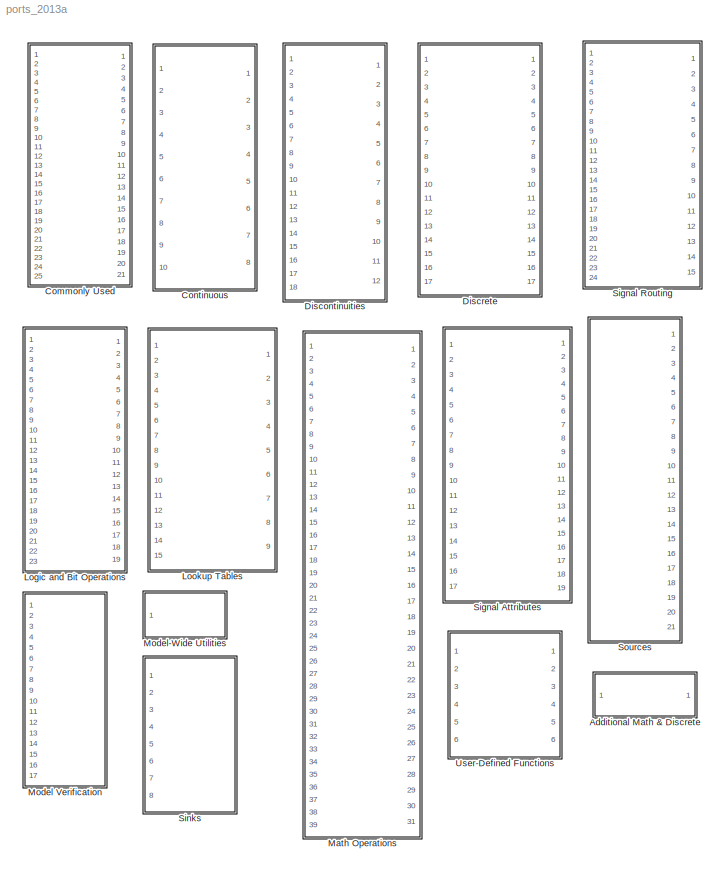
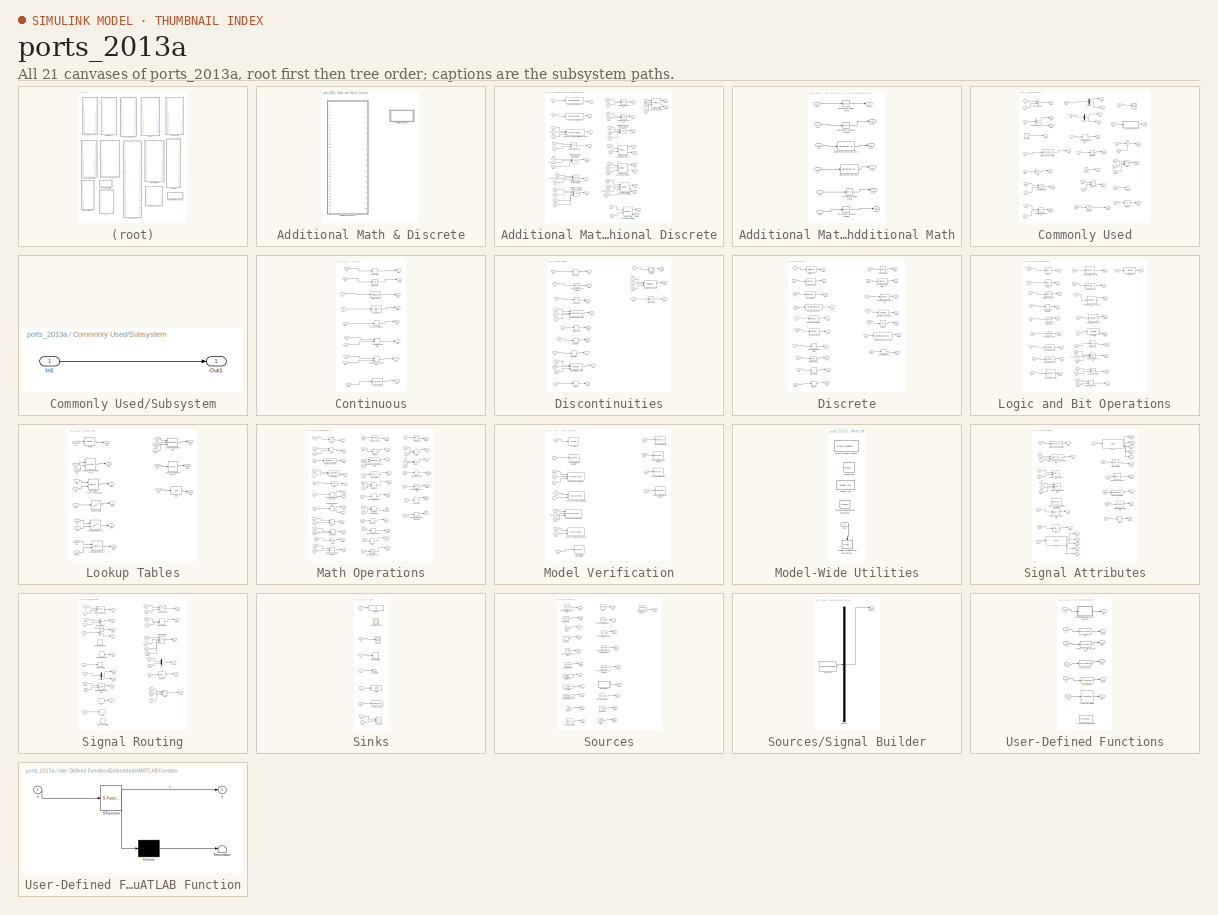
[diagram: thumbnail index - all 21 canvases of the model, root first then tree order]
MODEL ports_2013a
KIND model
BLOCK [SubSystem] Additional Math & Discrete
  FunctionWithSeparateData = off
  MaskHideContents = off
  MinAlgLoopOccurrences = off
  Opaque = off
  Ports = []
  PropExecContextOutsideSubsystem = off
  RTWSystemCode = Auto
  RequestExecContextInheritance = off
  SID = 1
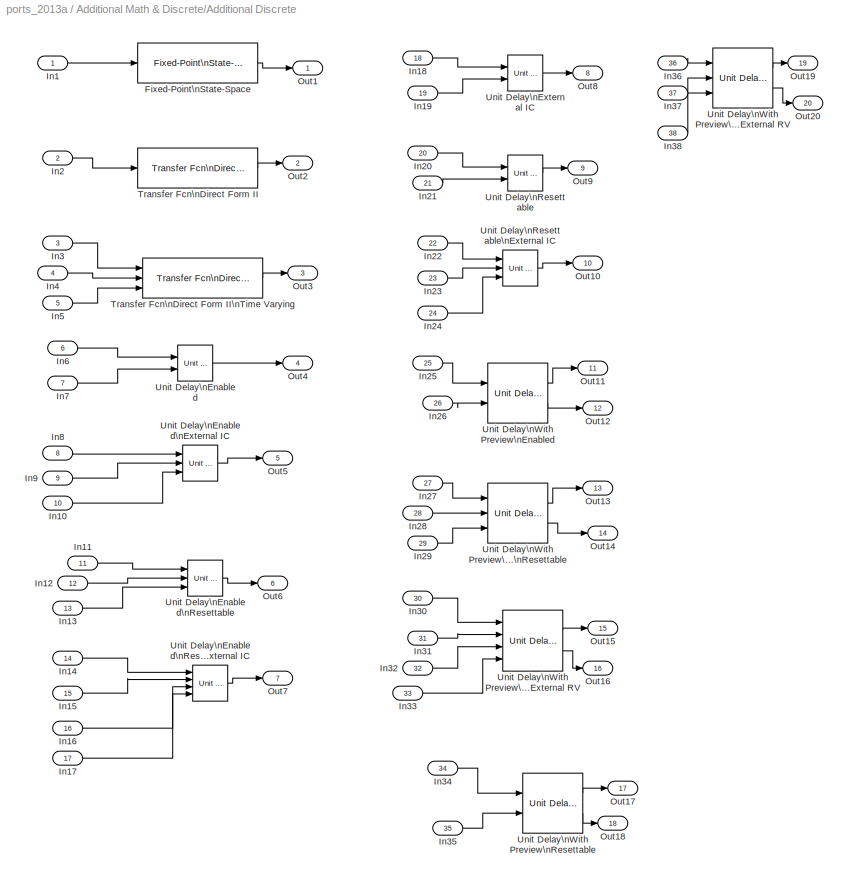
BLOCK [SubSystem] Additional Math & Discrete/Additional Discrete
  FunctionWithSeparateData = off
  MaskHideContents = off
  MinAlgLoopOccurrences = off
  Opaque = off
  Ports = [38, 20]
  PropExecContextOutsideSubsystem = off
  RTWSystemCode = Auto
  RequestExecContextInheritance = off
  SID = 2
BLOCK [Reference] Additional Math & Discrete/Additional Discrete/Fixed-Point\nState-Space  REF=simulink/Additional Math\n& Discrete/Additional\nDiscrete/Fixed-Point\nState-Space
  A = [2.6020 -2.2793 0.6708; 1 0 0; 0 1 0]
  B = [ 1; 0; 0]
  C = [0.0184    0.0024    0.0055]
  D = [0.0033]
  DoSatur = off
  InternalDataType = float('double')
  LockScale = off
  OutputEqScaling = 2^0
  Ports = [1, 1]
  RndMeth = Floor
  SID = 41
  SourceBlock = simulink/Additional Math\n& Discrete/Additional\nDiscrete/Fixed-Point\nState-Space
  SourceType = Fixed-Point State-Space
  StateEqScaling = 2^0
  X0 = 0.0
BLOCK [Inport] Additional Math & Discrete/Additional Discrete/In1
  IconDisplay = Port number
  SID = 3
BLOCK [Inport] Additional Math & Discrete/Additional Discrete/In10
  IconDisplay = Port number
  Port = 10
  SID = 12
BLOCK [Inport] Additional Math & Discrete/Additional Discrete/In11
  IconDisplay = Port number
  Port = 11
  SID = 13
BLOCK [Inport] Additional Math & Discrete/Additional Discrete/In12
  IconDisplay = Port number
  Port = 12
  SID = 14
BLOCK [Inport] Additional Math & Discrete/Additional Discrete/In13
  IconDisplay = Port number
  Port = 13
  SID = 15
BLOCK [Inport] Additional Math & Discrete/Additional Discrete/In14
  IconDisplay = Port number
  Port = 14
  SID = 16
BLOCK [Inport] Additional Math & Discrete/Additional Discrete/In15
  IconDisplay = Port number
  Port = 15
  SID = 17
BLOCK [Inport] Additional Math & Discrete/Additional Discrete/In16
  IconDisplay = Port number
  Port = 16
  SID = 18
BLOCK [Inport] Additional Math & Discrete/Additional Discrete/In17
  IconDisplay = Port number
  Port = 17
  SID = 19
BLOCK [Inport] Additional Math & Discrete/Additional Discrete/In18
  IconDisplay = Port number
  Port = 18
  SID = 20
BLOCK [Inport] Additional Math & Discrete/Additional Discrete/In19
  IconDisplay = Port number
  Port = 19
  SID = 21
BLOCK [Inport] Additional Math & Discrete/Additional Discrete/In2
  IconDisplay = Port number
  Port = 2
  SID = 4
BLOCK [Inport] Additional Math & Discrete/Additional Discrete/In20
  IconDisplay = Port number
  Port = 20
  SID = 22
BLOCK [Inport] Additional Math & Discrete/Additional Discrete/In21
  IconDisplay = Port number
  Port = 21
  SID = 23
BLOCK [Inport] Additional Math & Discrete/Additional Discrete/In22
  IconDisplay = Port number
  Port = 22
  SID = 24
BLOCK [Inport] Additional Math & Discrete/Additional Discrete/In23
  IconDisplay = Port number
  Port = 23
  SID = 25
BLOCK [Inport] Additional Math & Discrete/Additional Discrete/In24
  IconDisplay = Port number
  Port = 24
  SID = 26
BLOCK [Inport] Additional Math & Discrete/Additional Discrete/In25
  IconDisplay = Port number
  Port = 25
  SID = 27
BLOCK [Inport] Additional Math & Discrete/Additional Discrete/In26
  IconDisplay = Port number
  Port = 26
  SID = 28
BLOCK [Inport] Additional Math & Discrete/Additional Discrete/In27
  IconDisplay = Port number
  Port = 27
  SID = 29
BLOCK [Inport] Additional Math & Discrete/Additional Discrete/In28
  IconDisplay = Port number
  Port = 28
  SID = 30
BLOCK [Inport] Additional Math & Discrete/Additional Discrete/In29
  IconDisplay = Port number
  Port = 29
  SID = 31
BLOCK [Inport] Additional Math & Discrete/Additional Discrete/In3
  IconDisplay = Port number
  Port = 3
  SID = 5
BLOCK [Inport] Additional Math & Discrete/Additional Discrete/In30
  IconDisplay = Port number
  Port = 30
  SID = 32
BLOCK [Inport] Additional Math & Discrete/Additional Discrete/In31
  IconDisplay = Port number
  Port = 31
  SID = 33
BLOCK [Inport] Additional Math & Discrete/Additional Discrete/In32
  IconDisplay = Port number
  Port = 32
  SID = 34
BLOCK [Inport] Additional Math & Discrete/Additional Discrete/In33
  IconDisplay = Port number
  Port = 33
  SID = 35
BLOCK [Inport] Additional Math & Discrete/Additional Discrete/In34
  IconDisplay = Port number
  Port = 34
  SID = 36
BLOCK [Inport] Additional Math & Discrete/Additional Discrete/In35
  IconDisplay = Port number
  Port = 35
  SID = 37
BLOCK [Inport] Additional Math & Discrete/Additional Discrete/In36
  IconDisplay = Port number
  Port = 36
  SID = 38
BLOCK [Inport] Additional Math & Discrete/Additional Discrete/In37
  IconDisplay = Port number
  Port = 37
  SID = 39
BLOCK [Inport] Additional Math & Discrete/Additional Discrete/In38
  IconDisplay = Port number
  Port = 38
  SID = 40
BLOCK [Inport] Additional Math & Discrete/Additional Discrete/In4
  IconDisplay = Port number
  Port = 4
  SID = 6
BLOCK [Inport] Additional Math & Discrete/Additional Discrete/In5
  IconDisplay = Port number
  Port = 5
  SID = 7
BLOCK [Inport] Additional Math & Discrete/Additional Discrete/In6
  IconDisplay = Port number
  Port = 6
  SID = 8
BLOCK [Inport] Additional Math & Discrete/Additional Discrete/In7
  IconDisplay = Port number
  Port = 7
  SID = 9
BLOCK [Inport] Additional Math & Discrete/Additional Discrete/In8
  IconDisplay = Port number
  Port = 8
  SID = 10
BLOCK [Inport] Additional Math & Discrete/Additional Discrete/In9
  IconDisplay = Port number
  Port = 9
  SID = 11
BLOCK [Outport] Additional Math & Discrete/Additional Discrete/Out1
  IconDisplay = Port number
  SID = 56
BLOCK [Outport] Additional Math & Discrete/Additional Discrete/Out10
  IconDisplay = Port number
  Port = 10
  SID = 65
BLOCK [Outport] Additional Math & Discrete/Additional Discrete/Out11
  IconDisplay = Port number
  Port = 11
  SID = 66
BLOCK [Outport] Additional Math & Discrete/Additional Discrete/Out12
  IconDisplay = Port number
  Port = 12
  SID = 67
BLOCK [Outport] Additional Math & Discrete/Additional Discrete/Out13
  IconDisplay = Port number
  Port = 13
  SID = 68
BLOCK [Outport] Additional Math & Discrete/Additional Discrete/Out14
  IconDisplay = Port number
  Port = 14
  SID = 69
BLOCK [Outport] Additional Math & Discrete/Additional Discrete/Out15
  IconDisplay = Port number
  Port = 15
  SID = 70
BLOCK [Outport] Additional Math & Discrete/Additional Discrete/Out16
  IconDisplay = Port number
  Port = 16
  SID = 71
BLOCK [Outport] Additional Math & Discrete/Additional Discrete/Out17
  IconDisplay = Port number
  Port = 17
  SID = 72
BLOCK [Outport] Additional Math & Discrete/Additional Discrete/Out18
  IconDisplay = Port number
  Port = 18
  SID = 73
BLOCK [Outport] Additional Math & Discrete/Additional Discrete/Out19
  IconDisplay = Port number
  Port = 19
  SID = 74
BLOCK [Outport] Additional Math & Discrete/Additional Discrete/Out2
  IconDisplay = Port number
  Port = 2
  SID = 57
BLOCK [Outport] Additional Math & Discrete/Additional Discrete/Out20
  IconDisplay = Port number
  Port = 20
  SID = 75
BLOCK [Outport] Additional Math & Discrete/Additional Discrete/Out3
  IconDisplay = Port number
  Port = 3
  SID = 58
BLOCK [Outport] Additional Math & Discrete/Additional Discrete/Out4
  IconDisplay = Port number
  Port = 4
  SID = 59
BLOCK [Outport] Additional Math & Discrete/Additional Discrete/Out5
  IconDisplay = Port number
  Port = 5
  SID = 60
BLOCK [Outport] Additional Math & Discrete/Additional Discrete/Out6
  IconDisplay = Port number
  Port = 6
  SID = 61
BLOCK [Outport] Additional Math & Discrete/Additional Discrete/Out7
  IconDisplay = Port number
  Port = 7
  SID = 62
BLOCK [Outport] Additional Math & Discrete/Additional Discrete/Out8
  IconDisplay = Port number
  Port = 8
  SID = 63
BLOCK [Outport] Additional Math & Discrete/Additional Discrete/Out9
  IconDisplay = Port number
  Port = 9
  SID = 64
BLOCK [Reference] Additional Math & Discrete/Additional Discrete/Transfer Fcn\nDirect Form II  REF=simulink/Additional Math\n& Discrete/Additional\nDiscrete/Transfer Fcn\nDirect Form II
  DenCoefVec = [-0.9    0.6]
  DoSatur = off
  NumCoefVec = [0.2 0.3 0.2]
  Ports = [1, 1]
  RndMeth = Floor
  SID = 42
  SourceBlock = simulink/Additional Math\n& Discrete/Additional\nDiscrete/Transfer Fcn\nDirect Form II
  SourceType = Transfer Fcn Direct Form II
  vinit = 0.0
BLOCK [Reference] Additional Math & Discrete/Additional Discrete/Transfer Fcn\nDirect Form II\nTime Varying  REF=simulink/Additional Math\n& Discrete/Additional\nDiscrete/Transfer Fcn\nDirect Form II\nTime Varying
  DoSatur = off
  Ports = [3, 1]
  RndMeth = Floor
  SID = 43
  SourceBlock = simulink/Additional Math\n& Discrete/Additional\nDiscrete/Transfer Fcn\nDirect Form II\nTime Varying
  SourceType = Transfer Fcn Direct Form II Time Varying
  vinit = 0.0
BLOCK [Reference] Additional Math & Discrete/Additional Discrete/Unit Delay\nEnabled  REF=simulink/Additional Math\n& Discrete/Additional\nDiscrete/Unit Delay\nEnabled
  Ports = [2, 1]
  SID = 44
  SourceBlock = simulink/Additional Math\n& Discrete/Additional\nDiscrete/Unit Delay\nEnabled
  SourceType = Unit Delay Enabled
  tsamp = -1
  vinit = 0.0
BLOCK [Reference] Additional Math & Discrete/Additional Discrete/Unit Delay\nEnabled\nExternal IC  REF=simulink/Additional Math\n& Discrete/Additional\nDiscrete/Unit Delay\nEnabled\nExternal IC
  Ports = [3, 1]
  SID = 45
  SourceBlock = simulink/Additional Math\n& Discrete/Additional\nDiscrete/Unit Delay\nEnabled\nExternal IC
  SourceType = Unit Delay Enabled External Initial Condition
  tsamp = -1
BLOCK [Reference] Additional Math & Discrete/Additional Discrete/Unit Delay\nEnabled\nResettable  REF=simulink/Additional Math\n& Discrete/Additional\nDiscrete/Unit Delay\nEnabled\nResettable
  Ports = [3, 1]
  SID = 46
  SourceBlock = simulink/Additional Math\n& Discrete/Additional\nDiscrete/Unit Delay\nEnabled\nResettable
  SourceType = Unit Delay Enabled Resettable
  tsamp = -1
  vinit = 0.0
BLOCK [Reference] Additional Math & Discrete/Additional Discrete/Unit Delay\nEnabled\nResettable\nExternal IC  REF=simulink/Additional Math\n& Discrete/Additional\nDiscrete/Unit Delay\nEnabled\nResettable\nExternal IC
  Ports = [4, 1]
  SID = 47
  SourceBlock = simulink/Additional Math\n& Discrete/Additional\nDiscrete/Unit Delay\nEnabled\nResettable\nExternal IC
  SourceType = Unit Delay Enabled Resettable External Initial Condition
  tsamp = -1
BLOCK [Reference] Additional Math & Discrete/Additional Discrete/Unit Delay\nExternal IC  REF=simulink/Additional Math\n& Discrete/Additional\nDiscrete/Unit Delay\nExternal IC
  Ports = [2, 1]
  SID = 48
  SourceBlock = simulink/Additional Math\n& Discrete/Additional\nDiscrete/Unit Delay\nExternal IC
  SourceType = Unit Delay External Initial Condition
  tsamp = -1
BLOCK [Reference] Additional Math & Discrete/Additional Discrete/Unit Delay\nResettable  REF=simulink/Additional Math\n& Discrete/Additional\nDiscrete/Unit Delay\nResettable
  Ports = [2, 1]
  SID = 49
  SourceBlock = simulink/Additional Math\n& Discrete/Additional\nDiscrete/Unit Delay\nResettable
  SourceType = Unit Delay Resettable
  tsamp = -1
  vinit = 0.0
BLOCK [Reference] Additional Math & Discrete/Additional Discrete/Unit Delay\nResettable\nExternal IC  REF=simulink/Additional Math\n& Discrete/Additional\nDiscrete/Unit Delay\nResettable\nExternal IC
  Ports = [3, 1]
  SID = 50
  SourceBlock = simulink/Additional Math\n& Discrete/Additional\nDiscrete/Unit Delay\nResettable\nExternal IC
  SourceType = Unit Delay Resettable External Initial Condition
  tsamp = -1
BLOCK [Reference] Additional Math & Discrete/Additional Discrete/Unit Delay\nWith Preview\nEnabled  REF=simulink/Additional Math\n& Discrete/Additional\nDiscrete/Unit Delay\nWith Preview\nEnabled
  Ports = [2, 2]
  SID = 51
  SourceBlock = simulink/Additional Math\n& Discrete/Additional\nDiscrete/Unit Delay\nWith Preview\nEnabled
  SourceType = Unit Delay With Preview Enabled
  tsamp = -1
  vinit = 0.0
BLOCK [Reference] Additional Math & Discrete/Additional Discrete/Unit Delay\nWith Preview\nEnabled\nResettable  REF=simulink/Additional Math\n& Discrete/Additional\nDiscrete/Unit Delay\nWith Preview\nEnabled\nResettable
  Ports = [3, 2]
  SID = 52
  SourceBlock = simulink/Additional Math\n& Discrete/Additional\nDiscrete/Unit Delay\nWith Preview\nEnabled\nResettable
  SourceType = Unit Delay With Preview Enabled Resettable
  tsamp = -1
  vinit = 0.0
BLOCK [Reference] Additional Math & Discrete/Additional Discrete/Unit Delay\nWith Preview\nEnabled\nResettable\nExternal RV  REF=simulink/Additional Math\n& Discrete/Additional\nDiscrete/Unit Delay\nWith Preview\nEnabled\nResettable\nExternal RV
  Ports = [4, 2]
  SID = 53
  SourceBlock = simulink/Additional Math\n& Discrete/Additional\nDiscrete/Unit Delay\nWith Preview\nEnabled\nResettable\nExternal RV
  SourceType = Unit Delay With Preview Enabled Resettable External RV
  tsamp = -1
  vinit = 0.0
BLOCK [Reference] Additional Math & Discrete/Additional Discrete/Unit Delay\nWith Preview\nResettable  REF=simulink/Additional Math\n& Discrete/Additional\nDiscrete/Unit Delay\nWith Preview\nResettable
  Ports = [2, 2]
  SID = 54
  SourceBlock = simulink/Additional Math\n& Discrete/Additional\nDiscrete/Unit Delay\nWith Preview\nResettable
  SourceType = Unit Delay With Preview Resettable
  tsamp = -1
  vinit = 0.0
BLOCK [Reference] Additional Math & Discrete/Additional Discrete/Unit Delay\nWith Preview\nResettable\nExternal RV  REF=simulink/Additional Math\n& Discrete/Additional\nDiscrete/Unit Delay\nWith Preview\nResettable\nExternal RV
  Ports = [3, 2]
  SID = 55
  SourceBlock = simulink/Additional Math\n& Discrete/Additional\nDiscrete/Unit Delay\nWith Preview\nResettable\nExternal RV
  SourceType = Unit Delay With Preview Resettable External RV
  tsamp = -1
  vinit = 0.0
BLOCK [SubSystem] Additional Math & Discrete/Additional Math
  FunctionWithSeparateData = off
  MaskHideContents = off
  MinAlgLoopOccurrences = off
  Opaque = off
  Ports = [6, 6]
  PropExecContextOutsideSubsystem = off
  RTWSystemCode = Auto
  RequestExecContextInheritance = off
  SID = 76
BLOCK [Reference] Additional Math & Discrete/Additional Math/Decrement Time\nTo Zero  REF=simulink/Additional Math\n& Discrete/Additional Math:\nIncrement - Decrement/Decrement Time\nTo Zero
  Ports = [1, 1]
  SID = 86
  SourceBlock = simulink/Additional Math\n& Discrete/Additional Math:\nIncrement - Decrement/Decrement Time\nTo Zero
  SourceType = Decrement Time To Zero
BLOCK [Reference] Additional Math & Discrete/Additional Math/Decrement\nReal World  REF=simulink/Additional Math\n& Discrete/Additional Math:\nIncrement - Decrement/Decrement\nReal World
  Ports = [1, 1]
  SID = 83
  SourceBlock = simulink/Additional Math\n& Discrete/Additional Math:\nIncrement - Decrement/Decrement\nReal World
  SourceType = Real World Value Decrement
BLOCK [Reference] Additional Math & Discrete/Additional Math/Decrement\nStored Integer  REF=simulink/Additional Math\n& Discrete/Additional Math:\nIncrement - Decrement/Decrement\nStored Integer
  Ports = [1, 1]
  SID = 84
  SourceBlock = simulink/Additional Math\n& Discrete/Additional Math:\nIncrement - Decrement/Decrement\nStored Integer
  SourceType = Stored Integer Value Decrement
BLOCK [Reference] Additional Math & Discrete/Additional Math/Decrement\nTo Zero  REF=simulink/Additional Math\n& Discrete/Additional Math:\nIncrement - Decrement/Decrement\nTo Zero
  Ports = [1, 1]
  SID = 85
  SourceBlock = simulink/Additional Math\n& Discrete/Additional Math:\nIncrement - Decrement/Decrement\nTo Zero
  SourceType = Decrement To Zero
BLOCK [Inport] Additional Math & Discrete/Additional Math/In1
  IconDisplay = Port number
  SID = 77
BLOCK [Inport] Additional Math & Discrete/Additional Math/In2
  IconDisplay = Port number
  Port = 2
  SID = 78
BLOCK [Inport] Additional Math & Discrete/Additional Math/In3
  IconDisplay = Port number
  Port = 3
  SID = 79
BLOCK [Inport] Additional Math & Discrete/Additional Math/In4
  IconDisplay = Port number
  Port = 4
  SID = 80
BLOCK [Inport] Additional Math & Discrete/Additional Math/In5
  IconDisplay = Port number
  Port = 5
  SID = 81
BLOCK [Inport] Additional Math & Discrete/Additional Math/In6
  IconDisplay = Port number
  Port = 6
  SID = 82
BLOCK [Reference] Additional Math & Discrete/Additional Math/Increment\nReal World  REF=simulink/Additional Math\n& Discrete/Additional Math:\nIncrement - Decrement/Increment\nReal World
  Ports = [1, 1]
  SID = 87
  SourceBlock = simulink/Additional Math\n& Discrete/Additional Math:\nIncrement - Decrement/Increment\nReal World
  SourceType = Real World Value Increment
BLOCK [Reference] Additional Math & Discrete/Additional Math/Increment\nStored Integer  REF=simulink/Additional Math\n& Discrete/Additional Math:\nIncrement - Decrement/Increment\nStored Integer
  Ports = [1, 1]
  SID = 88
  SourceBlock = simulink/Additional Math\n& Discrete/Additional Math:\nIncrement - Decrement/Increment\nStored Integer
  SourceType = Stored Integer Value Increment
BLOCK [Outport] Additional Math & Discrete/Additional Math/Out2
  IconDisplay = Port number
  SID = 89
BLOCK [Outport] Additional Math & Discrete/Additional Math/Out3
  IconDisplay = Port number
  Port = 2
  SID = 90
BLOCK [Outport] Additional Math & Discrete/Additional Math/Out4
  IconDisplay = Port number
  Port = 3
  SID = 91
BLOCK [Outport] Additional Math & Discrete/Additional Math/Out5
  IconDisplay = Port number
  Port = 4
  SID = 92
BLOCK [Outport] Additional Math & Discrete/Additional Math/Out6
  IconDisplay = Port number
  Port = 5
  SID = 93
BLOCK [Outport] Additional Math & Discrete/Additional Math/Out7
  IconDisplay = Port number
  Port = 6
  SID = 94
BLOCK [SubSystem] Commonly Used
  FunctionWithSeparateData = off
  MaskHideContents = off
  MinAlgLoopOccurrences = off
  Opaque = off
  Ports = [25, 21]
  PropExecContextOutsideSubsystem = off
  RTWSystemCode = Auto
  RequestExecContextInheritance = off
  SID = 95
BLOCK [BusCreator] Commonly Used/Bus\nCreator
  DisplayOption = bar
  Inputs = 2
  Ports = [2, 1]
  SID = 121
BLOCK [BusSelector] Commonly Used/Bus\nSelector
  OutputSignals = signal1,signal2
  Ports = [1, 2]
  SID = 122
BLOCK [Constant] Commonly Used/Constant
  SID = 123
BLOCK [DataTypeConversion] Commonly Used/Data Type Conversion
  RndMeth = Floor
  SID = 124
  SaturateOnIntegerOverflow = off
BLOCK [Demux] Commonly Used/Demux
  DisplayOption = bar
  Outputs = 2
  Ports = [1, 2]
  SID = 125
BLOCK [Demux] Commonly Used/Demux1
  DisplayOption = bar
  Outputs = 2
  Ports = [1, 2]
  SID = 126
BLOCK [DiscreteIntegrator] Commonly Used/Discrete-Time\nIntegrator
  ICPrevOutput = DiscIntNeverNeededParam
  ICPrevScaledInput = DiscIntNeverNeededParam
  Ports = [1, 1]
  SID = 127
BLOCK [Gain] Commonly Used/Gain
  OutDataTypeStr = Inherit: Inherit via internal rule
  ParamDataTypeStr = Inherit: Inherit via internal rule
  SID = 128
  SaturateOnIntegerOverflow = off
BLOCK [Ground] Commonly Used/Ground
  SID = 129
BLOCK [Inport] Commonly Used/In1
  IconDisplay = Port number
  SID = 96
BLOCK [Inport] Commonly Used/In10
  IconDisplay = Port number
  Port = 10
  SID = 105
BLOCK [Inport] Commonly Used/In11
  IconDisplay = Port number
  Port = 11
  SID = 106
BLOCK [Inport] Commonly Used/In12
  IconDisplay = Port number
  Port = 12
  SID = 107
BLOCK [Inport] Commonly Used/In13
  IconDisplay = Port number
  Port = 13
  SID = 108
BLOCK [Inport] Commonly Used/In14
  IconDisplay = Port number
  Port = 14
  SID = 109
BLOCK [Inport] Commonly Used/In15
  IconDisplay = Port number
  Port = 15
  SID = 110
BLOCK [Inport] Commonly Used/In16
  IconDisplay = Port number
  Port = 16
  SID = 111
BLOCK [Inport] Commonly Used/In17
  IconDisplay = Port number
  Port = 17
  SID = 112
BLOCK [Inport] Commonly Used/In18
  IconDisplay = Port number
  Port = 18
  SID = 113
BLOCK [Inport] Commonly Used/In19
  IconDisplay = Port number
  Port = 19
  SID = 114
BLOCK [Inport] Commonly Used/In2
  IconDisplay = Port number
  Port = 2
  SID = 97
BLOCK [Inport] Commonly Used/In20
  IconDisplay = Port number
  Port = 20
  SID = 115
BLOCK [Inport] Commonly Used/In21
  IconDisplay = Port number
  Port = 21
  SID = 116
BLOCK [Inport] Commonly Used/In22
  IconDisplay = Port number
  Port = 22
  SID = 117
BLOCK [Inport] Commonly Used/In23
  IconDisplay = Port number
  Port = 23
  SID = 118
BLOCK [Inport] Commonly Used/In24
  IconDisplay = Port number
  Port = 24
  SID = 119
BLOCK [Inport] Commonly Used/In25
  IconDisplay = Port number
  Port = 25
  SID = 120
BLOCK [Inport] Commonly Used/In3
  IconDisplay = Port number
  Port = 3
  SID = 98
BLOCK [Inport] Commonly Used/In4
  IconDisplay = Port number
  Port = 4
  SID = 99
BLOCK [Inport] Commonly Used/In5
  IconDisplay = Port number
  Port = 5
  SID = 100
BLOCK [Inport] Commonly Used/In6
  IconDisplay = Port number
  Port = 6
  SID = 101
BLOCK [Inport] Commonly Used/In7
  IconDisplay = Port number
  Port = 7
  SID = 102
BLOCK [Inport] Commonly Used/In8
  IconDisplay = Port number
  Port = 8
  SID = 103
BLOCK [Inport] Commonly Used/In9
  IconDisplay = Port number
  Port = 9
  SID = 104
BLOCK [Integrator] Commonly Used/Integrator
  Ports = [1, 1]
  SID = 130
BLOCK [Logic] Commonly Used/Logical\nOperator
  AllPortsSameDT = off
  OutDataTypeStr = boolean
  Ports = [2, 1]
  SID = 131
BLOCK [Outport] Commonly Used/Out1
  IconDisplay = Port number
  SID = 143
BLOCK [Outport] Commonly Used/Out10
  IconDisplay = Port number
  Port = 10
  SID = 152
BLOCK [Outport] Commonly Used/Out11
  IconDisplay = Port number
  Port = 11
  SID = 153
BLOCK [Outport] Commonly Used/Out12
  IconDisplay = Port number
  Port = 12
  SID = 154
BLOCK [Outport] Commonly Used/Out13
  IconDisplay = Port number
  Port = 13
  SID = 155
BLOCK [Outport] Commonly Used/Out14
  IconDisplay = Port number
  Port = 14
  SID = 156
BLOCK [Outport] Commonly Used/Out15
  IconDisplay = Port number
  Port = 15
  SID = 157
BLOCK [Outport] Commonly Used/Out16
  IconDisplay = Port number
  Port = 16
  SID = 158
BLOCK [Outport] Commonly Used/Out17
  IconDisplay = Port number
  Port = 17
  SID = 159
BLOCK [Outport] Commonly Used/Out18
  IconDisplay = Port number
  Port = 18
  SID = 160
BLOCK [Outport] Commonly Used/Out19
  IconDisplay = Port number
  Port = 19
  SID = 161
BLOCK [Outport] Commonly Used/Out2
  IconDisplay = Port number
  Port = 2
  SID = 144
BLOCK [Outport] Commonly Used/Out20
  IconDisplay = Port number
  Port = 20
  SID = 162
BLOCK [Outport] Commonly Used/Out21
  IconDisplay = Port number
  Port = 21
  SID = 163
BLOCK [Outport] Commonly Used/Out3
  IconDisplay = Port number
  Port = 3
  SID = 145
BLOCK [Outport] Commonly Used/Out4
  IconDisplay = Port number
  Port = 4
  SID = 146
BLOCK [Outport] Commonly Used/Out5
  IconDisplay = Port number
  Port = 5
  SID = 147
BLOCK [Outport] Commonly Used/Out6
  IconDisplay = Port number
  Port = 6
  SID = 148
BLOCK [Outport] Commonly Used/Out7
  IconDisplay = Port number
  Port = 7
  SID = 149
BLOCK [Outport] Commonly Used/Out8
  IconDisplay = Port number
  Port = 8
  SID = 150
BLOCK [Outport] Commonly Used/Out9
  IconDisplay = Port number
  Port = 9
  SID = 151
BLOCK [Product] Commonly Used/Product
  InputSameDT = off
  OutDataTypeStr = Inherit: Inherit via internal rule
  Ports = [2, 1]
  SID = 132
  SaturateOnIntegerOverflow = off
BLOCK [RelationalOperator] Commonly Used/Relational\nOperator
  InputSameDT = off
  Operator = <=
  OutDataTypeStr = boolean
  Ports = [2, 1]
  SID = 133
BLOCK [Saturate] Commonly Used/Saturation
  InputPortMap = u0
  Ports = [1, 1]
  SID = 134
BLOCK [Scope] Commonly Used/Scope
  DataFormat = StructureWithTime
  Floating = off
  NumInputPorts = 1
  Ports = [1]
  SID = 135
  SampleTime = 0
  SaveName = ScopeData1
  ShowLegends = off
BLOCK [SubSystem] Commonly Used/Subsystem
  FunctionWithSeparateData = off
  MaskHideContents = off
  MinAlgLoopOccurrences = off
  Opaque = off
  Ports = [1, 1]
  PropExecContextOutsideSubsystem = off
  RTWSystemCode = Auto
  RequestExecContextInheritance = off
  SID = 136
BLOCK [Inport] Commonly Used/Subsystem/In1
  IconDisplay = Port number
  SID = 137
BLOCK [Outport] Commonly Used/Subsystem/Out1
  IconDisplay = Port number
  SID = 138
BLOCK [Sum] Commonly Used/Sum
  IconShape = round
  InputSameDT = off
  Inputs = |++
  OutDataTypeStr = Inherit: Inherit via internal rule
  Ports = [2, 1]
  SID = 139
  SaturateOnIntegerOverflow = off
BLOCK [Switch] Commonly Used/Switch
  InputSameDT = off
  SID = 140
  SaturateOnIntegerOverflow = off
BLOCK [Terminator] Commonly Used/Terminator
  SID = 141
BLOCK [UnitDelay] Commonly Used/Unit Delay
  SID = 142
BLOCK [SubSystem] Continuous
  FunctionWithSeparateData = off
  MaskHideContents = off
  MinAlgLoopOccurrences = off
  Opaque = off
  Ports = [10, 8]
  PropExecContextOutsideSubsystem = off
  RTWSystemCode = Auto
  RequestExecContextInheritance = off
  SID = 164
BLOCK [Derivative] Continuous/Derivative
  SID = 175
BLOCK [Inport] Continuous/In1
  IconDisplay = Port number
  SID = 165
BLOCK [Inport] Continuous/In10
  IconDisplay = Port number
  Port = 10
  SID = 174
BLOCK [Inport] Continuous/In2
  IconDisplay = Port number
  Port = 2
  SID = 166
BLOCK [Inport] Continuous/In3
  IconDisplay = Port number
  Port = 3
  SID = 167
BLOCK [Inport] Continuous/In4
  IconDisplay = Port number
  Port = 4
  SID = 168
BLOCK [Inport] Continuous/In5
  IconDisplay = Port number
  Port = 5
  SID = 169
BLOCK [Inport] Continuous/In6
  IconDisplay = Port number
  Port = 6
  SID = 170
BLOCK [Inport] Continuous/In7
  IconDisplay = Port number
  Port = 7
  SID = 171
BLOCK [Inport] Continuous/In8
  IconDisplay = Port number
  Port = 8
  SID = 172
BLOCK [Inport] Continuous/In9
  IconDisplay = Port number
  Port = 9
  SID = 173
BLOCK [Integrator] Continuous/Integrator
  Ports = [1, 1]
  SID = 176
BLOCK [Outport] Continuous/Out1
  IconDisplay = Port number
  SID = 183
BLOCK [Outport] Continuous/Out2
  IconDisplay = Port number
  Port = 2
  SID = 184
BLOCK [Outport] Continuous/Out3
  IconDisplay = Port number
  Port = 3
  SID = 185
BLOCK [Outport] Continuous/Out4
  IconDisplay = Port number
  Port = 4
  SID = 186
BLOCK [Outport] Continuous/Out5
  IconDisplay = Port number
  Port = 5
  SID = 187
BLOCK [Outport] Continuous/Out6
  IconDisplay = Port number
  Port = 6
  SID = 188
BLOCK [Outport] Continuous/Out7
  IconDisplay = Port number
  Port = 7
  SID = 189
BLOCK [Outport] Continuous/Out8
  IconDisplay = Port number
  Port = 8
  SID = 190
BLOCK [StateSpace] Continuous/State-Space
  Ports = [1, 1]
  SID = 177
  X0 = 0
BLOCK [TransferFcn] Continuous/Transfer Fcn
  Denominator = [1 1]
  SID = 178
BLOCK [TransportDelay] Continuous/Transport\nDelay
  Ports = [1, 1]
  SID = 179
BLOCK [VariableTransportDelay] Continuous/Variable\nTime Delay
  MaximumDelay = 10
  Ports = [2, 1]
  SID = 180
BLOCK [VariableTransportDelay] Continuous/Variable\nTransport Delay
  MaximumDelay = 10
  Ports = [2, 1]
  SID = 181
  VariableDelayType = Variable transport delay
BLOCK [ZeroPole] Continuous/Zero-Pole
  Poles = [0 -1]
  SID = 182
BLOCK [SubSystem] Discontinuities
  FunctionWithSeparateData = off
  MaskHideContents = off
  MinAlgLoopOccurrences = off
  Opaque = off
  Ports = [18, 12]
  PropExecContextOutsideSubsystem = off
  RTWSystemCode = Auto
  RequestExecContextInheritance = off
  SID = 191
BLOCK [Backlash] Discontinuities/Backlash
  SID = 210
BLOCK [Reference] Discontinuities/Coulomb &\nViscous Friction  REF=simulink/Discontinuities/Coulomb &\nViscous Friction
  Ports = [1, 1]
  SID = 211
  SourceBlock = simulink/Discontinuities/Coulomb &\nViscous Friction
  SourceType = Coulombic and Viscous Friction
  gain = 1
  offset = [1 3 2 0]
BLOCK [DeadZone] Discontinuities/Dead Zone
  SID = 212
BLOCK [Reference] Discontinuities/Dead Zone\nDynamic  REF=simulink/Discontinuities/Dead Zone\nDynamic
  Ports = [3, 1]
  SID = 213
  SourceBlock = simulink/Discontinuities/Dead Zone\nDynamic
  SourceType = Dead Zone Dynamic
BLOCK [HitCross] Discontinuities/Hit \nCrossing
  Ports = [1, 1]
  SID = 214
BLOCK [Inport] Discontinuities/In1
  IconDisplay = Port number
  SID = 192
BLOCK [Inport] Discontinuities/In10
  IconDisplay = Port number
  Port = 10
  SID = 201
BLOCK [Inport] Discontinuities/In11
  IconDisplay = Port number
  Port = 11
  SID = 202
BLOCK [Inport] Discontinuities/In12
  IconDisplay = Port number
  Port = 12
  SID = 203
BLOCK [Inport] Discontinuities/In13
  IconDisplay = Port number
  Port = 13
  SID = 204
BLOCK [Inport] Discontinuities/In14
  IconDisplay = Port number
  Port = 14
  SID = 205
BLOCK [Inport] Discontinuities/In15
  IconDisplay = Port number
  Port = 15
  SID = 206
BLOCK [Inport] Discontinuities/In16
  IconDisplay = Port number
  Port = 16
  SID = 207
BLOCK [Inport] Discontinuities/In17
  IconDisplay = Port number
  Port = 17
  SID = 208
BLOCK [Inport] Discontinuities/In18
  IconDisplay = Port number
  Port = 18
  SID = 209
BLOCK [Inport] Discontinuities/In2
  IconDisplay = Port number
  Port = 2
  SID = 193
BLOCK [Inport] Discontinuities/In3
  IconDisplay = Port number
  Port = 3
  SID = 194
BLOCK [Inport] Discontinuities/In4
  IconDisplay = Port number
  Port = 4
  SID = 195
BLOCK [Inport] Discontinuities/In5
  IconDisplay = Port number
  Port = 5
  SID = 196
BLOCK [Inport] Discontinuities/In6
  IconDisplay = Port number
  Port = 6
  SID = 197
BLOCK [Inport] Discontinuities/In7
  IconDisplay = Port number
  Port = 7
  SID = 198
BLOCK [Inport] Discontinuities/In8
  IconDisplay = Port number
  Port = 8
  SID = 199
BLOCK [Inport] Discontinuities/In9
  IconDisplay = Port number
  Port = 9
  SID = 200
BLOCK [Outport] Discontinuities/Out1
  IconDisplay = Port number
  SID = 222
BLOCK [Outport] Discontinuities/Out10
  IconDisplay = Port number
  Port = 10
  SID = 231
BLOCK [Outport] Discontinuities/Out11
  IconDisplay = Port number
  Port = 11
  SID = 232
BLOCK [Outport] Discontinuities/Out12
  IconDisplay = Port number
  Port = 12
  SID = 233
BLOCK [Outport] Discontinuities/Out2
  IconDisplay = Port number
  Port = 2
  SID = 223
BLOCK [Outport] Discontinuities/Out3
  IconDisplay = Port number
  Port = 3
  SID = 224
BLOCK [Outport] Discontinuities/Out4
  IconDisplay = Port number
  Port = 4
  SID = 225
BLOCK [Outport] Discontinuities/Out5
  IconDisplay = Port number
  Port = 5
  SID = 226
BLOCK [Outport] Discontinuities/Out6
  IconDisplay = Port number
  Port = 6
  SID = 227
BLOCK [Outport] Discontinuities/Out7
  IconDisplay = Port number
  Port = 7
  SID = 228
BLOCK [Outport] Discontinuities/Out8
  IconDisplay = Port number
  Port = 8
  SID = 229
BLOCK [Outport] Discontinuities/Out9
  IconDisplay = Port number
  Port = 9
  SID = 230
BLOCK [Quantizer] Discontinuities/Quantizer
  SID = 215
BLOCK [RateLimiter] Discontinuities/Rate Limiter
  SID = 216
  SampleTimeMode = inherited
BLOCK [Reference] Discontinuities/Rate Limiter\nDynamic  REF=simulink/Discontinuities/Rate Limiter\nDynamic
  Ports = [3, 1]
  SID = 217
  SourceBlock = simulink/Discontinuities/Rate Limiter\nDynamic
  SourceType = Rate Limiter Dynamic
BLOCK [Relay] Discontinuities/Relay
  SID = 218
BLOCK [Saturate] Discontinuities/Saturation
  InputPortMap = u0
  Ports = [1, 1]
  SID = 219
BLOCK [Reference] Discontinuities/Saturation\nDynamic  REF=simulink/Discontinuities/Saturation\nDynamic
  DoSatur = off
  LockScale = off
  OutDataType = fixdt(1, 16)
  OutDataTypeStr = Inherit: Same as second input
  OutMax = []
  OutMin = []
  OutScaling = 2^-10
  OutputDataTypeScalingMode = Same as second input
  Ports = [3, 1]
  RndMeth = Floor
  SID = 220
  SourceBlock = simulink/Discontinuities/Saturation\nDynamic
  SourceType = Saturation Dynamic
BLOCK [Reference] Discontinuities/Wrap To Zero  REF=simulink/Discontinuities/Wrap To Zero
  Ports = [1, 1]
  SID = 221
  SourceBlock = simulink/Discontinuities/Wrap To Zero
  SourceType = Wrap To Zero
  Threshold = 255
BLOCK [SubSystem] Discrete
  FunctionWithSeparateData = off
  MaskHideContents = off
  MinAlgLoopOccurrences = off
  Opaque = off
  Ports = [17, 17]
  PropExecContextOutsideSubsystem = off
  RTWSystemCode = Auto
  RequestExecContextInheritance = off
  SID = 234
BLOCK [Reference] Discrete/Difference  REF=simulink/Discrete/Difference
  DoSatur = off
  ICPrevInput = 0.0
  InputProcessing = Inherited
  LockScale = off
  OutDataType = sfix(16)
  OutDataTypeStr = Inherit: Inherit via internal rule
  OutMax = []
  OutMin = []
  OutScaling = 2^-10
  OutputDataTypeScalingMode = Inherit via internal rule
  Ports = [1, 1]
  RndMeth = Floor
  SID = 252
  SourceBlock = simulink/Discrete/Difference
  SourceType = Difference
BLOCK [Reference] Discrete/Discrete Derivative  REF=simulink/Discrete/Discrete Derivative
  DoSatur = off
  ICPrevScaledInput = 0.0
  InputProcessing = Inherited
  LockScale = off
  OutDataType = sfix(16)
  OutDataTypeStr = Inherit: Inherit via internal rule
  OutMax = []
  OutMin = []
  OutScaling = 2^-10
  OutputDataTypeScalingMode = Inherit via internal rule
  Ports = [1, 1]
  RndMeth = Floor
  SID = 255
  SourceBlock = simulink/Discrete/Discrete Derivative
  SourceType = Discrete Derivative
  gainval = 1.0
BLOCK [DiscreteFilter] Discrete/Discrete Filter
  InputPortMap = u0
  Ports = [1, 1]
  SID = 256
  SampleTime = 1
BLOCK [DiscreteStateSpace] Discrete/Discrete State-Space
  SID = 257
BLOCK [DiscreteIntegrator] Discrete/Discrete-Time\nIntegrator
  ICPrevOutput = DiscIntNeverNeededParam
  ICPrevScaledInput = DiscIntNeverNeededParam
  Ports = [1, 1]
  SID = 258
BLOCK [DiscreteTransferFcn] Discrete/Discrete\nTransfer Fcn
  InputPortMap = u0
  Ports = [1, 1]
  SID = 253
  SampleTime = 1
BLOCK [DiscreteZeroPole] Discrete/Discrete\nZero-Pole
  Gain = 1
  Poles = [0 0.5]
  SID = 254
BLOCK [Reference] Discrete/First-Order\nHold  REF=simulink/Discrete/First-Order\nHold
  DisableCoverage = on
  Ports = [1, 1]
  SID = 259
  SourceBlock = simulink/Discrete/First-Order\nHold
  SourceType = First-Order Hold
  Ts = 1
BLOCK [Inport] Discrete/In1
  IconDisplay = Port number
  SID = 235
BLOCK [Inport] Discrete/In10
  IconDisplay = Port number
  Port = 10
  SID = 244
BLOCK [Inport] Discrete/In11
  IconDisplay = Port number
  Port = 11
  SID = 245
BLOCK [Inport] Discrete/In12
  IconDisplay = Port number
  Port = 12
  SID = 246
BLOCK [Inport] Discrete/In13
  IconDisplay = Port number
  Port = 13
  SID = 247
BLOCK [Inport] Discrete/In14
  IconDisplay = Port number
  Port = 14
  SID = 248
BLOCK [Inport] Discrete/In15
  IconDisplay = Port number
  Port = 15
  SID = 249
BLOCK [Inport] Discrete/In16
  IconDisplay = Port number
  Port = 16
  SID = 250
BLOCK [Inport] Discrete/In17
  IconDisplay = Port number
  Port = 17
  SID = 251
BLOCK [Inport] Discrete/In2
  IconDisplay = Port number
  Port = 2
  SID = 236
BLOCK [Inport] Discrete/In3
  IconDisplay = Port number
  Port = 3
  SID = 237
BLOCK [Inport] Discrete/In4
  IconDisplay = Port number
  Port = 4
  SID = 238
BLOCK [Inport] Discrete/In5
  IconDisplay = Port number
  Port = 5
  SID = 239
BLOCK [Inport] Discrete/In6
  IconDisplay = Port number
  Port = 6
  SID = 240
BLOCK [Inport] Discrete/In7
  IconDisplay = Port number
  Port = 7
  SID = 241
BLOCK [Inport] Discrete/In8
  IconDisplay = Port number
  Port = 8
  SID = 242
BLOCK [Inport] Discrete/In9
  IconDisplay = Port number
  Port = 9
  SID = 243
BLOCK [Delay] Discrete/Integer Delay
  DelayLength = 4
  InputPortMap = u0
  InputProcessing = Inherited
  Ports = [1, 1]
  SID = 260
BLOCK [Memory] Discrete/Memory
  SID = 261
BLOCK [Outport] Discrete/Out1
  IconDisplay = Port number
  SID = 269
BLOCK [Outport] Discrete/Out10
  IconDisplay = Port number
  Port = 10
  SID = 278
BLOCK [Outport] Discrete/Out11
  IconDisplay = Port number
  Port = 11
  SID = 279
BLOCK [Outport] Discrete/Out12
  IconDisplay = Port number
  Port = 12
  SID = 280
BLOCK [Outport] Discrete/Out13
  IconDisplay = Port number
  Port = 13
  SID = 281
BLOCK [Outport] Discrete/Out14
  IconDisplay = Port number
  Port = 14
  SID = 282
BLOCK [Outport] Discrete/Out15
  IconDisplay = Port number
  Port = 15
  SID = 283
BLOCK [Outport] Discrete/Out16
  IconDisplay = Port number
  Port = 16
  SID = 284
BLOCK [Outport] Discrete/Out17
  IconDisplay = Port number
  Port = 17
  SID = 285
BLOCK [Outport] Discrete/Out2
  IconDisplay = Port number
  Port = 2
  SID = 270
BLOCK [Outport] Discrete/Out3
  IconDisplay = Port number
  Port = 3
  SID = 271
BLOCK [Outport] Discrete/Out4
  IconDisplay = Port number
  Port = 4
  SID = 272
BLOCK [Outport] Discrete/Out5
  IconDisplay = Port number
  Port = 5
  SID = 273
BLOCK [Outport] Discrete/Out6
  IconDisplay = Port number
  Port = 6
  SID = 274
BLOCK [Outport] Discrete/Out7
  IconDisplay = Port number
  Port = 7
  SID = 275
BLOCK [Outport] Discrete/Out8
  IconDisplay = Port number
  Port = 8
  SID = 276
BLOCK [Outport] Discrete/Out9
  IconDisplay = Port number
  Port = 9
  SID = 277
BLOCK [Reference] Discrete/Tapped Delay  REF=simulink/Discrete/Tapped Delay
  DelayOrder = Oldest
  NumDelays = 4
  Ports = [1, 1]
  SID = 262
  SourceBlock = simulink/Discrete/Tapped Delay
  SourceType = Tapped Delay Line
  includeCurrent = off
  samptime = -1
  vinit = 0.0
BLOCK [Reference] Discrete/Transfer Fcn\nFirst Order  REF=simulink/Discrete/Transfer Fcn\nFirst Order
  DoSatur = off
  ICPrevOutput = 0.0
  PoleZ = 0.95
  Ports = [1, 1]
  RndMeth = Floor
  SID = 263
  SourceBlock = simulink/Discrete/Transfer Fcn\nFirst Order
  SourceType = First Order Transfer Fcn
BLOCK [Reference] Discrete/Transfer Fcn\nLead or Lag  REF=simulink/Discrete/Transfer Fcn\nLead or Lag
  DoSatur = off
  ICPrevInput = 0.0
  ICPrevOutput = 0.0
  PoleZ = 0.95
  Ports = [1, 1]
  RndMeth = Floor
  SID = 264
  SourceBlock = simulink/Discrete/Transfer Fcn\nLead or Lag
  SourceType = Lead or Lag Compensator
  ZeroZ = 0.75
BLOCK [Reference] Discrete/Transfer Fcn\nReal Zero  REF=simulink/Discrete/Transfer Fcn\nReal Zero
  DoSatur = off
  ICPrevInput = 0.0
  InputProcessing = Inherited
  Ports = [1, 1]
  RndMeth = Floor
  SID = 265
  SourceBlock = simulink/Discrete/Transfer Fcn\nReal Zero
  SourceType = Transfer Fcn Real Zero
  ZeroZ = 0.75
BLOCK [UnitDelay] Discrete/Unit Delay
  SID = 266
BLOCK [Reference] Discrete/Weighted\nMoving Average  REF=simulink_need_slupdate/Weighted\nMoving Average
  DoSatur = off
  GainDataType = sfix( 16 )
  GainDataTypeScalingMode = Inherit via internal rule
  GainDataTypeStr = Inherit: Inherit via internal rule
  GainScaling = 2^-10
  LockScale = off
  MatRadixGroup = Best Precision: Matrix-wise
  OutDataType = sfix(16)
  OutDataTypeStr = Inherit: Inherit via internal rule
  OutScaling = 2^-10
  OutputDataTypeScalingMode = Inherit via internal rule
  Ports = [1, 1]
  RndMeth = Floor
  SID = 267
  SourceBlock = simulink_need_slupdate/Weighted\nMoving Average
  SourceType = Weighted Moving Average
  mgainval = [0.1:0.1:1 0.9:-0.1:0.1]
  samptime = -1
  vinit = 0.0
BLOCK [ZeroOrderHold] Discrete/Zero-Order\nHold
  SID = 268
BLOCK [SubSystem] Logic and Bit Operations
  FunctionWithSeparateData = off
  MaskHideContents = off
  MinAlgLoopOccurrences = off
  Opaque = off
  Ports = [23, 19]
  PropExecContextOutsideSubsystem = off
  RTWSystemCode = Auto
  RequestExecContextInheritance = off
  SID = 286
BLOCK [Reference] Logic and Bit Operations/Bit Clear  REF=simulink/Logic and Bit\nOperations/Bit Clear
  Ports = [1, 1]
  SID = 310
  SourceBlock = simulink/Logic and Bit\nOperations/Bit Clear
  SourceType = Bit Clear
  iBit = 0
BLOCK [Reference] Logic and Bit Operations/Bit Set  REF=simulink/Logic and Bit\nOperations/Bit Set
  Ports = [1, 1]
  SID = 311
  SourceBlock = simulink/Logic and Bit\nOperations/Bit Set
  SourceType = Bit Set
  iBit = 0
BLOCK [Reference] Logic and Bit Operations/Bitwise\nOperator  REF=simulink/Logic and Bit\nOperations/Bitwise\nOperator
  BitMask = bin2dec('11011001')
  BitMaskRealWorld = Stored Integer
  NumInputPorts = 1
  Ports = [1, 1]
  SID = 312
  SourceBlock = simulink/Logic and Bit\nOperations/Bitwise\nOperator
  SourceType = Bitwise Operator
  UseBitMask = on
  logicop = AND
BLOCK [CombinatorialLogic] Logic and Bit Operations/Combinatorial \nLogic
  SID = 313
BLOCK [Reference] Logic and Bit Operations/Compare\nTo Constant  REF=simulink/Logic and Bit\nOperations/Compare\nTo Constant
  OutDataTypeStr = uint8
  Ports = [1, 1]
  SID = 314
  SourceBlock = simulink/Logic and Bit\nOperations/Compare\nTo Constant
  SourceType = Compare To Constant
  ZeroCross = off
  const = 3.0
  relop = <=
BLOCK [Reference] Logic and Bit Operations/Compare\nTo Zero  REF=simulink/Logic and Bit\nOperations/Compare\nTo Zero
  OutDataTypeStr = uint8
  Ports = [1, 1]
  SID = 315
  SourceBlock = simulink/Logic and Bit\nOperations/Compare\nTo Zero
  SourceType = Compare To Zero
  ZeroCross = off
  relop = <=
BLOCK [Reference] Logic and Bit Operations/Detect Fall\nNegative  REF=simulink/Logic and Bit\nOperations/Detect Fall\nNegative
  InputProcessing = Inherited
  OutDataTypeStr = uint8
  Ports = [1, 1]
  SID = 319
  SourceBlock = simulink/Logic and Bit\nOperations/Detect Fall\nNegative
  SourceType = Detect Fall Negative
  vinit = 0
BLOCK [Reference] Logic and Bit Operations/Detect Fall\nNonpositive  REF=simulink/Logic and Bit\nOperations/Detect Fall\nNonpositive
  InputProcessing = Inherited
  OutDataTypeStr = uint8
  Ports = [1, 1]
  SID = 320
  SourceBlock = simulink/Logic and Bit\nOperations/Detect Fall\nNonpositive
  SourceType = Detect Fall Nonpositive
  vinit = 0
BLOCK [Reference] Logic and Bit Operations/Detect Rise\nNonnegative  REF=simulink/Logic and Bit\nOperations/Detect Rise\nNonnegative
  InputProcessing = Inherited
  OutDataTypeStr = uint8
  Ports = [1, 1]
  SID = 321
  SourceBlock = simulink/Logic and Bit\nOperations/Detect Rise\nNonnegative
  SourceType = Detect Rise Nonnegative
  vinit = 0
BLOCK [Reference] Logic and Bit Operations/Detect Rise\nPositive  REF=simulink/Logic and Bit\nOperations/Detect Rise\nPositive
  InputProcessing = Inherited
  OutDataTypeStr = uint8
  Ports = [1, 1]
  SID = 322
  SourceBlock = simulink/Logic and Bit\nOperations/Detect Rise\nPositive
  SourceType = Detect Rise Positive
  vinit = 0
BLOCK [Reference] Logic and Bit Operations/Detect\nChange  REF=simulink/Logic and Bit\nOperations/Detect\nChange
  InputProcessing = Inherited
  OutDataTypeStr = uint8
  Ports = [1, 1]
  SID = 316
  SourceBlock = simulink/Logic and Bit\nOperations/Detect\nChange
  SourceType = Detect Change
  vinit = 0
BLOCK [Reference] Logic and Bit Operations/Detect\nDecrease  REF=simulink/Logic and Bit\nOperations/Detect\nDecrease
  InputProcessing = Inherited
  OutDataTypeStr = uint8
  Ports = [1, 1]
  SID = 317
  SourceBlock = simulink/Logic and Bit\nOperations/Detect\nDecrease
  SourceType = Detect Decrease
  vinit = 0.0
BLOCK [Reference] Logic and Bit Operations/Detect\nIncrease  REF=simulink/Logic and Bit\nOperations/Detect\nIncrease
  InputProcessing = Inherited
  OutDataTypeStr = uint8
  Ports = [1, 1]
  SID = 318
  SourceBlock = simulink/Logic and Bit\nOperations/Detect\nIncrease
  SourceType = Detect Increase
  vinit = 0.0
BLOCK [Reference] Logic and Bit Operations/Extract Bits  REF=simulink/Logic and Bit\nOperations/Extract Bits
  Ports = [1, 1]
  SID = 323
  SourceBlock = simulink/Logic and Bit\nOperations/Extract Bits
  SourceType = Extract Bits
  bitIdxRange = [0 7]
  bitsToExtract = Upper half
  numBits = 8
  outScalingMode = Preserve fixed-point scaling
BLOCK [Inport] Logic and Bit Operations/In1
  IconDisplay = Port number
  SID = 287
BLOCK [Inport] Logic and Bit Operations/In10
  IconDisplay = Port number
  Port = 10
  SID = 296
BLOCK [Inport] Logic and Bit Operations/In11
  IconDisplay = Port number
  Port = 11
  SID = 297
BLOCK [Inport] Logic and Bit Operations/In12
  IconDisplay = Port number
  Port = 12
  SID = 298
BLOCK [Inport] Logic and Bit Operations/In13
  IconDisplay = Port number
  Port = 20
  SID = 306
BLOCK [Inport] Logic and Bit Operations/In14
  IconDisplay = Port number
  Port = 13
  SID = 299
BLOCK [Inport] Logic and Bit Operations/In15
  IconDisplay = Port number
  Port = 14
  SID = 300
BLOCK [Inport] Logic and Bit Operations/In16
  IconDisplay = Port number
  Port = 15
  SID = 301
BLOCK [Inport] Logic and Bit Operations/In17
  IconDisplay = Port number
  Port = 16
  SID = 302
BLOCK [Inport] Logic and Bit Operations/In18
  IconDisplay = Port number
  Port = 17
  SID = 303
BLOCK [Inport] Logic and Bit Operations/In19
  IconDisplay = Port number
  Port = 18
  SID = 304
BLOCK [Inport] Logic and Bit Operations/In2
  IconDisplay = Port number
  Port = 2
  SID = 288
BLOCK [Inport] Logic and Bit Operations/In20
  IconDisplay = Port number
  Port = 19
  SID = 305
BLOCK [Inport] Logic and Bit Operations/In21
  IconDisplay = Port number
  Port = 21
  SID = 307
BLOCK [Inport] Logic and Bit Operations/In22
  IconDisplay = Port number
  Port = 22
  SID = 308
BLOCK [Inport] Logic and Bit Operations/In23
  IconDisplay = Port number
  Port = 23
  SID = 309
BLOCK [Inport] Logic and Bit Operations/In3
  IconDisplay = Port number
  Port = 3
  SID = 289
BLOCK [Inport] Logic and Bit Operations/In4
  IconDisplay = Port number
  Port = 4
  SID = 290
BLOCK [Inport] Logic and Bit Operations/In5
  IconDisplay = Port number
  Port = 5
  SID = 291
BLOCK [Inport] Logic and Bit Operations/In6
  IconDisplay = Port number
  Port = 6
  SID = 292
BLOCK [Inport] Logic and Bit Operations/In7
  IconDisplay = Port number
  Port = 7
  SID = 293
BLOCK [Inport] Logic and Bit Operations/In8
  IconDisplay = Port number
  Port = 8
  SID = 294
BLOCK [Inport] Logic and Bit Operations/In9
  IconDisplay = Port number
  Port = 9
  SID = 295
BLOCK [Reference] Logic and Bit Operations/Interval Test  REF=simulink/Logic and Bit\nOperations/Interval Test
  IntervalClosedLeft = on
  IntervalClosedRight = on
  OutDataTypeStr = boolean
  Ports = [1, 1]
  SID = 324
  SourceBlock = simulink/Logic and Bit\nOperations/Interval Test
  SourceType = Interval Test
  lowlimit = -0.5
  uplimit = 0.5
BLOCK [Reference] Logic and Bit Operations/Interval Test\nDynamic  REF=simulink/Logic and Bit\nOperations/Interval Test\nDynamic
  IntervalClosedLeft = on
  IntervalClosedRight = on
  OutDataTypeStr = boolean
  Ports = [3, 1]
  SID = 325
  SourceBlock = simulink/Logic and Bit\nOperations/Interval Test\nDynamic
  SourceType = Interval Test Dynamic
BLOCK [Logic] Logic and Bit Operations/Logical\nOperator
  AllPortsSameDT = off
  OutDataTypeStr = boolean
  Ports = [2, 1]
  SID = 326
BLOCK [Outport] Logic and Bit Operations/Out1
  IconDisplay = Port number
  SID = 329
BLOCK [Outport] Logic and Bit Operations/Out10
  IconDisplay = Port number
  Port = 10
  SID = 338
BLOCK [Outport] Logic and Bit Operations/Out11
  IconDisplay = Port number
  Port = 11
  SID = 339
BLOCK [Outport] Logic and Bit Operations/Out12
  IconDisplay = Port number
  Port = 12
  SID = 340
BLOCK [Outport] Logic and Bit Operations/Out13
  IconDisplay = Port number
  Port = 13
  SID = 341
BLOCK [Outport] Logic and Bit Operations/Out15
  IconDisplay = Port number
  Port = 14
  SID = 342
BLOCK [Outport] Logic and Bit Operations/Out16
  IconDisplay = Port number
  Port = 15
  SID = 343
BLOCK [Outport] Logic and Bit Operations/Out17
  IconDisplay = Port number
  Port = 16
  SID = 344
BLOCK [Outport] Logic and Bit Operations/Out18
  IconDisplay = Port number
  Port = 17
  SID = 345
BLOCK [Outport] Logic and Bit Operations/Out19
  IconDisplay = Port number
  Port = 18
  SID = 346
BLOCK [Outport] Logic and Bit Operations/Out2
  IconDisplay = Port number
  Port = 2
  SID = 330
BLOCK [Outport] Logic and Bit Operations/Out20
  IconDisplay = Port number
  Port = 19
  SID = 347
BLOCK [Outport] Logic and Bit Operations/Out3
  IconDisplay = Port number
  Port = 3
  SID = 331
BLOCK [Outport] Logic and Bit Operations/Out4
  IconDisplay = Port number
  Port = 4
  SID = 332
BLOCK [Outport] Logic and Bit Operations/Out5
  IconDisplay = Port number
  Port = 5
  SID = 333
BLOCK [Outport] Logic and Bit Operations/Out6
  IconDisplay = Port number
  Port = 6
  SID = 334
BLOCK [Outport] Logic and Bit Operations/Out7
  IconDisplay = Port number
  Port = 7
  SID = 335
BLOCK [Outport] Logic and Bit Operations/Out8
  IconDisplay = Port number
  Port = 8
  SID = 336
BLOCK [Outport] Logic and Bit Operations/Out9
  IconDisplay = Port number
  Port = 9
  SID = 337
BLOCK [RelationalOperator] Logic and Bit Operations/Relational\nOperator
  InputSameDT = off
  Operator = <=
  OutDataTypeStr = boolean
  Ports = [2, 1]
  SID = 327
BLOCK [ArithShift] Logic and Bit Operations/Shift\nArithmetic
  BitShiftNumber = 8
  InputPortMap = u0
  Ports = [1, 1]
  SID = 328
BLOCK [SubSystem] Lookup Tables
  FunctionWithSeparateData = off
  MaskHideContents = off
  MinAlgLoopOccurrences = off
  Opaque = off
  Ports = [15, 9]
  PropExecContextOutsideSubsystem = off
  RTWSystemCode = Auto
  RequestExecContextInheritance = off
  SID = 348
BLOCK [Reference] Lookup Tables/Cosine  REF=simulink/Lookup\nTables/Cosine
  Formula = cos(2*pi*u)
  NumDataPoints = (2^5)+1
  OutputWordLength = 16
  Ports = [1, 1]
  SID = 364
  SourceBlock = simulink/Lookup\nTables/Cosine
  SourceType = Sine and Cosine
BLOCK [LookupNDDirect] Lookup Tables/Direct Lookup\nTable (n-D)
  Ports = [2, 1]
  SID = 365
BLOCK [Inport] Lookup Tables/In1
  IconDisplay = Port number
  SID = 349
BLOCK [Inport] Lookup Tables/In10
  IconDisplay = Port number
  Port = 10
  SID = 358
BLOCK [Inport] Lookup Tables/In11
  IconDisplay = Port number
  Port = 11
  SID = 359
BLOCK [Inport] Lookup Tables/In12
  IconDisplay = Port number
  Port = 12
  SID = 360
BLOCK [Inport] Lookup Tables/In13
  IconDisplay = Port number
  Port = 13
  SID = 361
BLOCK [Inport] Lookup Tables/In14
  IconDisplay = Port number
  Port = 14
  SID = 362
BLOCK [Inport] Lookup Tables/In15
  IconDisplay = Port number
  Port = 15
  SID = 363
BLOCK [Inport] Lookup Tables/In2
  IconDisplay = Port number
  Port = 2
  SID = 350
BLOCK [Inport] Lookup Tables/In3
  IconDisplay = Port number
  Port = 3
  SID = 351
BLOCK [Inport] Lookup Tables/In4
  IconDisplay = Port number
  Port = 4
  SID = 352
BLOCK [Inport] Lookup Tables/In5
  IconDisplay = Port number
  Port = 5
  SID = 353
BLOCK [Inport] Lookup Tables/In6
  IconDisplay = Port number
  Port = 6
  SID = 354
BLOCK [Inport] Lookup Tables/In7
  IconDisplay = Port number
  Port = 7
  SID = 355
BLOCK [Inport] Lookup Tables/In8
  IconDisplay = Port number
  Port = 8
  SID = 356
BLOCK [Inport] Lookup Tables/In9
  IconDisplay = Port number
  Port = 9
  SID = 357
BLOCK [Reference] Lookup Tables/Interpolation (n-D)\nusing PreLookup  REF=simulink_need_slupdate/Interpolation (n-D)\nusing PreLookup
  NumSelectionDims = 0
  Ports = [2, 1]
  SID = 366
  SourceBlock = simulink_need_slupdate/Interpolation (n-D)\nusing PreLookup
  SourceType = LookupNDInterpIdx
  explicitNumDims = 2
  extrapMethod = Linear
  interpMethod = Linear
  numDimsPopupSelect = 2
  rangeErrorMode = None
  table = sqrt([1:10]'*[1:10])
BLOCK [Lookup] Lookup Tables/Lookup Table
  InputValues = [-5:5]
  SID = 370
  SaturateOnIntegerOverflow = off
  Table = tanh([-5:5])
BLOCK [Lookup2D] Lookup Tables/Lookup\nTable (2-D)
  ColumnIndex = [1:3]
  InputSameDT = off
  RowIndex = [1:3]
  SID = 368
  SaturateOnIntegerOverflow = off
  Table = [4 5 6;16 19 20;10 18 23]
BLOCK [Lookup_n-D] Lookup Tables/Lookup\nTable (n-D)
  Ports = [2, 1]
  RndMeth = Simplest
  SID = 369
BLOCK [Reference] Lookup Tables/Lookup\nTable\nDynamic  REF=simulink/Lookup\nTables/Lookup\nTable\nDynamic
  DoSatur = off
  LockScale = off
  LookUpMeth = Interpolation-Use End Values
  OutDataType = float('double')
  OutDataTypeStr = float('double')
  OutScaling = 2^-10
  OutputDataTypeScalingMode = Specify via dialog
  Ports = [3, 1]
  RndMeth = Floor
  SID = 367
  SourceBlock = simulink/Lookup\nTables/Lookup\nTable\nDynamic
  SourceType = Lookup Table Dynamic
BLOCK [Outport] Lookup Tables/Out1
  IconDisplay = Port number
  SID = 373
BLOCK [Outport] Lookup Tables/Out2
  IconDisplay = Port number
  Port = 2
  SID = 374
BLOCK [Outport] Lookup Tables/Out3
  IconDisplay = Port number
  Port = 3
  SID = 375
BLOCK [Outport] Lookup Tables/Out4
  IconDisplay = Port number
  Port = 4
  SID = 376
BLOCK [Outport] Lookup Tables/Out5
  IconDisplay = Port number
  Port = 5
  SID = 377
BLOCK [Outport] Lookup Tables/Out6
  IconDisplay = Port number
  Port = 6
  SID = 378
BLOCK [Outport] Lookup Tables/Out7
  IconDisplay = Port number
  Port = 7
  SID = 379
BLOCK [Outport] Lookup Tables/Out8
  IconDisplay = Port number
  Port = 8
  SID = 380
BLOCK [Outport] Lookup Tables/Out9
  IconDisplay = Port number
  Port = 9
  SID = 381
BLOCK [Reference] Lookup Tables/PreLookup\nIndex Search  REF=simulink_need_slupdate/PreLookup\nIndex Search
  IndexDataType = uint32
  Ports = [1, 1]
  SID = 371
  SourceBlock = simulink_need_slupdate/PreLookup\nIndex Search
  SourceType = LookupIdxSearch
  bpData = [10:10:100]
  cacheBpFlag = off
  extrapMode = Linear Extrapolation
  outputFlag = off
  rangeErrorMode = None
  searchMode = Binary Search
BLOCK [Reference] Lookup Tables/Sine  REF=simulink/Lookup\nTables/Sine
  Formula = sin(2*pi*u)
  NumDataPoints = (2^5)+1
  OutputWordLength = 16
  Ports = [1, 1]
  SID = 372
  SourceBlock = simulink/Lookup\nTables/Sine
  SourceType = Sine and Cosine
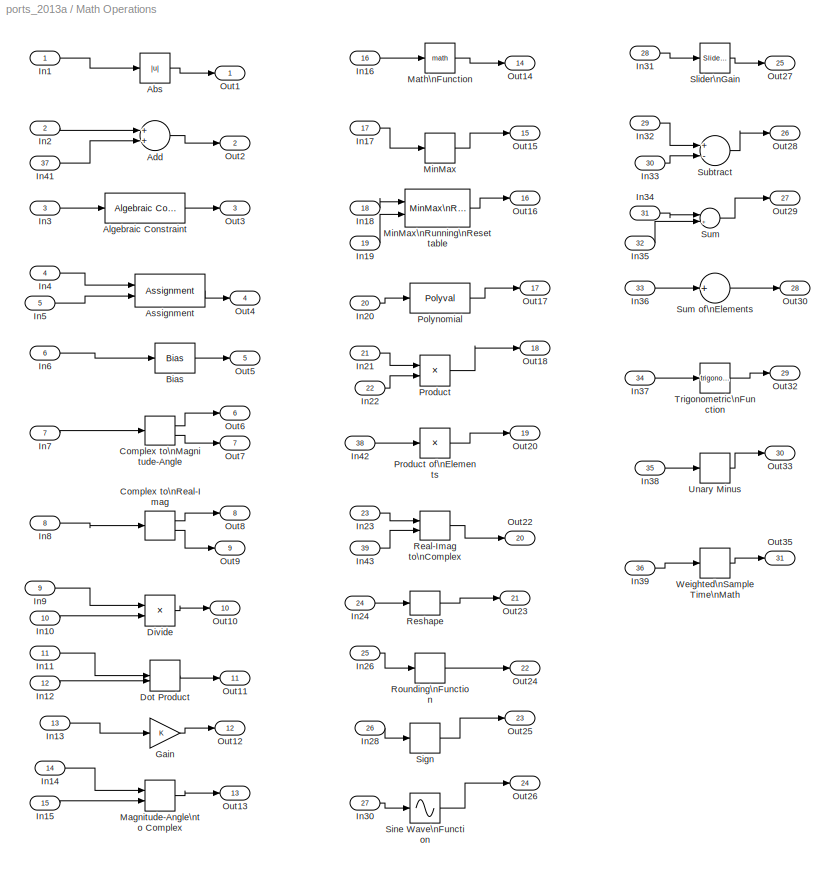
BLOCK [SubSystem] Math Operations
  FunctionWithSeparateData = off
  MaskHideContents = off
  MinAlgLoopOccurrences = off
  Opaque = off
  Ports = [39, 31]
  PropExecContextOutsideSubsystem = off
  RTWSystemCode = Auto
  RequestExecContextInheritance = off
  SID = 382
BLOCK [Abs] Math Operations/Abs
  SID = 422
  SaturateOnIntegerOverflow = off
BLOCK [Sum] Math Operations/Add
  InputSameDT = off
  OutDataTypeStr = Inherit: Inherit via internal rule
  Ports = [2, 1]
  SID = 423
  SaturateOnIntegerOverflow = off
BLOCK [Reference] Math Operations/Algebraic Constraint  REF=simulink/Math\nOperations/Algebraic Constraint
  Ports = [1, 1]
  SID = 424
  SourceBlock = simulink/Math\nOperations/Algebraic Constraint
  SourceType = Algebraic Constraint
  z0 = 0
BLOCK [Assignment] Math Operations/Assignment
  IndexOptions = Index vector (dialog)
  Indices = 1
  OutputSizes = [1 1]
  Ports = [2, 1]
  SID = 425
BLOCK [Bias] Math Operations/Bias
  Bias = 0.0
  SID = 426
  SaturateOnIntegerOverflow = off
BLOCK [ComplexToMagnitudeAngle] Math Operations/Complex to\nMagnitude-Angle
  Ports = [1, 2]
  SID = 427
BLOCK [ComplexToRealImag] Math Operations/Complex to\nReal-Imag
  Ports = [1, 2]
  SID = 428
BLOCK [Product] Math Operations/Divide
  InputSameDT = off
  Inputs = */
  OutDataTypeStr = Inherit: Inherit via internal rule
  Ports = [2, 1]
  RndMeth = Floor
  SID = 429
  SaturateOnIntegerOverflow = off
BLOCK [DotProduct] Math Operations/Dot Product
  OutDataTypeStr = Inherit: Inherit via internal rule
  SID = 430
BLOCK [Gain] Math Operations/Gain
  OutDataTypeStr = Inherit: Inherit via internal rule
  ParamDataTypeStr = Inherit: Inherit via internal rule
  SID = 431
  SaturateOnIntegerOverflow = off
BLOCK [Inport] Math Operations/In1
  IconDisplay = Port number
  SID = 383
BLOCK [Inport] Math Operations/In10
  IconDisplay = Port number
  Port = 10
  SID = 392
BLOCK [Inport] Math Operations/In11
  IconDisplay = Port number
  Port = 11
  SID = 393
BLOCK [Inport] Math Operations/In12
  IconDisplay = Port number
  Port = 12
  SID = 394
BLOCK [Inport] Math Operations/In13
  IconDisplay = Port number
  Port = 13
  SID = 395
BLOCK [Inport] Math Operations/In14
  IconDisplay = Port number
  Port = 14
  SID = 396
BLOCK [Inport] Math Operations/In15
  IconDisplay = Port number
  Port = 15
  SID = 397
BLOCK [Inport] Math Operations/In16
  IconDisplay = Port number
  Port = 16
  SID = 398
BLOCK [Inport] Math Operations/In17
  IconDisplay = Port number
  Port = 17
  SID = 399
BLOCK [Inport] Math Operations/In18
  IconDisplay = Port number
  Port = 18
  SID = 400
BLOCK [Inport] Math Operations/In19
  IconDisplay = Port number
  Port = 19
  SID = 401
BLOCK [Inport] Math Operations/In2
  IconDisplay = Port number
  Port = 2
  SID = 384
BLOCK [Inport] Math Operations/In20
  IconDisplay = Port number
  Port = 20
  SID = 402
BLOCK [Inport] Math Operations/In21
  IconDisplay = Port number
  Port = 21
  SID = 403
BLOCK [Inport] Math Operations/In22
  IconDisplay = Port number
  Port = 22
  SID = 404
BLOCK [Inport] Math Operations/In23
  IconDisplay = Port number
  Port = 23
  SID = 405
BLOCK [Inport] Math Operations/In24
  IconDisplay = Port number
  Port = 24
  SID = 406
BLOCK [Inport] Math Operations/In26
  IconDisplay = Port number
  Port = 25
  SID = 407
BLOCK [Inport] Math Operations/In28
  IconDisplay = Port number
  Port = 26
  SID = 408
BLOCK [Inport] Math Operations/In3
  IconDisplay = Port number
  Port = 3
  SID = 385
BLOCK [Inport] Math Operations/In30
  IconDisplay = Port number
  Port = 27
  SID = 409
BLOCK [Inport] Math Operations/In31
  IconDisplay = Port number
  Port = 28
  SID = 410
BLOCK [Inport] Math Operations/In32
  IconDisplay = Port number
  Port = 29
  SID = 411
BLOCK [Inport] Math Operations/In33
  IconDisplay = Port number
  Port = 30
  SID = 412
BLOCK [Inport] Math Operations/In34
  IconDisplay = Port number
  Port = 31
  SID = 413
BLOCK [Inport] Math Operations/In35
  IconDisplay = Port number
  Port = 32
  SID = 414
BLOCK [Inport] Math Operations/In36
  IconDisplay = Port number
  Port = 33
  SID = 415
BLOCK [Inport] Math Operations/In37
  IconDisplay = Port number
  Port = 34
  SID = 416
BLOCK [Inport] Math Operations/In38
  IconDisplay = Port number
  Port = 35
  SID = 417
BLOCK [Inport] Math Operations/In39
  IconDisplay = Port number
  Port = 36
  SID = 418
BLOCK [Inport] Math Operations/In4
  IconDisplay = Port number
  Port = 4
  SID = 386
BLOCK [Inport] Math Operations/In41
  IconDisplay = Port number
  Port = 37
  SID = 419
BLOCK [Inport] Math Operations/In42
  IconDisplay = Port number
  Port = 38
  SID = 420
BLOCK [Inport] Math Operations/In43
  IconDisplay = Port number
  Port = 39
  SID = 421
BLOCK [Inport] Math Operations/In5
  IconDisplay = Port number
  Port = 5
  SID = 387
BLOCK [Inport] Math Operations/In6
  IconDisplay = Port number
  Port = 6
  SID = 388
BLOCK [Inport] Math Operations/In7
  IconDisplay = Port number
  Port = 7
  SID = 389
BLOCK [Inport] Math Operations/In8
  IconDisplay = Port number
  Port = 8
  SID = 390
BLOCK [Inport] Math Operations/In9
  IconDisplay = Port number
  Port = 9
  SID = 391
BLOCK [MagnitudeAngleToComplex] Math Operations/Magnitude-Angle\nto Complex
  Ports = [2, 1]
  SID = 432
BLOCK [Math] Math Operations/Math\nFunction
  Ports = [1, 1]
  SID = 433
BLOCK [MinMax] Math Operations/MinMax
  InputSameDT = off
  Ports = [1, 1]
  SID = 434
  SaturateOnIntegerOverflow = off
BLOCK [Reference] Math Operations/MinMax\nRunning\nResettable  REF=simulink/Math\nOperations/MinMax\nRunning\nResettable
  Function = min
  Ports = [2, 1]
  SID = 435
  SourceBlock = simulink/Math\nOperations/MinMax\nRunning\nResettable
  SourceType = MinMax Running Resettable
  vinit = 0.0
BLOCK [Outport] Math Operations/Out1
  IconDisplay = Port number
  SID = 451
BLOCK [Outport] Math Operations/Out10
  IconDisplay = Port number
  Port = 10
  SID = 460
BLOCK [Outport] Math Operations/Out11
  IconDisplay = Port number
  Port = 11
  SID = 461
BLOCK [Outport] Math Operations/Out12
  IconDisplay = Port number
  Port = 12
  SID = 462
BLOCK [Outport] Math Operations/Out13
  IconDisplay = Port number
  Port = 13
  SID = 463
BLOCK [Outport] Math Operations/Out14
  IconDisplay = Port number
  Port = 14
  SID = 464
BLOCK [Outport] Math Operations/Out15
  IconDisplay = Port number
  Port = 15
  SID = 465
BLOCK [Outport] Math Operations/Out16
  IconDisplay = Port number
  Port = 16
  SID = 466
BLOCK [Outport] Math Operations/Out17
  IconDisplay = Port number
  Port = 17
  SID = 467
BLOCK [Outport] Math Operations/Out18
  IconDisplay = Port number
  Port = 18
  SID = 468
BLOCK [Outport] Math Operations/Out2
  IconDisplay = Port number
  Port = 2
  SID = 452
BLOCK [Outport] Math Operations/Out20
  IconDisplay = Port number
  Port = 19
  SID = 469
BLOCK [Outport] Math Operations/Out22
  IconDisplay = Port number
  Port = 20
  SID = 470
BLOCK [Outport] Math Operations/Out23
  IconDisplay = Port number
  Port = 21
  SID = 471
BLOCK [Outport] Math Operations/Out24
  IconDisplay = Port number
  Port = 22
  SID = 472
BLOCK [Outport] Math Operations/Out25
  IconDisplay = Port number
  Port = 23
  SID = 473
BLOCK [Outport] Math Operations/Out26
  IconDisplay = Port number
  Port = 24
  SID = 474
BLOCK [Outport] Math Operations/Out27
  IconDisplay = Port number
  Port = 25
  SID = 475
BLOCK [Outport] Math Operations/Out28
  IconDisplay = Port number
  Port = 26
  SID = 476
BLOCK [Outport] Math Operations/Out29
  IconDisplay = Port number
  Port = 27
  SID = 477
BLOCK [Outport] Math Operations/Out3
  IconDisplay = Port number
  Port = 3
  SID = 453
BLOCK [Outport] Math Operations/Out30
  IconDisplay = Port number
  Port = 28
  SID = 478
BLOCK [Outport] Math Operations/Out32
  IconDisplay = Port number
  Port = 29
  SID = 479
BLOCK [Outport] Math Operations/Out33
  IconDisplay = Port number
  Port = 30
  SID = 480
BLOCK [Outport] Math Operations/Out35
  IconDisplay = Port number
  Port = 31
  SID = 481
BLOCK [Outport] Math Operations/Out4
  IconDisplay = Port number
  Port = 4
  SID = 454
BLOCK [Outport] Math Operations/Out5
  IconDisplay = Port number
  Port = 5
  SID = 455
BLOCK [Outport] Math Operations/Out6
  IconDisplay = Port number
  Port = 6
  SID = 456
BLOCK [Outport] Math Operations/Out7
  IconDisplay = Port number
  Port = 7
  SID = 457
BLOCK [Outport] Math Operations/Out8
  IconDisplay = Port number
  Port = 8
  SID = 458
BLOCK [Outport] Math Operations/Out9
  IconDisplay = Port number
  Port = 9
  SID = 459
BLOCK [Polyval] Math Operations/Polynomial
  Coefs = [ +2.081618890e-019, -1.441693666e-014, +4.719686976e-010, -8.536869453e-006, +1.621573104e-001, -8.087801117e+001 ]
  SID = 436
BLOCK [Product] Math Operations/Product
  InputSameDT = off
  OutDataTypeStr = Inherit: Inherit via internal rule
  Ports = [2, 1]
  SID = 437
  SaturateOnIntegerOverflow = off
BLOCK [Product] Math Operations/Product of\nElements
  InputSameDT = off
  Inputs = *
  OutDataTypeStr = Inherit: Inherit via internal rule
  Ports = [1, 1]
  RndMeth = Floor
  SID = 438
  SaturateOnIntegerOverflow = off
BLOCK [RealImagToComplex] Math Operations/Real-Imag to\nComplex
  Ports = [2, 1]
  SID = 439
BLOCK [Reshape] Math Operations/Reshape
  Ports = [1, 1]
  SID = 440
BLOCK [Rounding] Math Operations/Rounding\nFunction
  SID = 441
BLOCK [Signum] Math Operations/Sign
  SID = 442
BLOCK [Sin] Math Operations/Sine Wave\nFunction
  Ports = [1, 1]
  SID = 443
  SampleTime = 0
  TimeSource = Use external signal
BLOCK [Reference] Math Operations/Slider\nGain  REF=simulink/Math\nOperations/Slider\nGain
  Ports = [1, 1]
  SID = 444
  SourceBlock = simulink/Math\nOperations/Slider\nGain
  SourceType = Slider Gain
  gain = 1
  high = 2
  low = 0
BLOCK [Sum] Math Operations/Subtract
  InputSameDT = off
  Inputs = +-
  OutDataTypeStr = Inherit: Inherit via internal rule
  Ports = [2, 1]
  SID = 445
  SaturateOnIntegerOverflow = off
BLOCK [Sum] Math Operations/Sum
  IconShape = round
  InputSameDT = off
  Inputs = |++
  OutDataTypeStr = Inherit: Inherit via internal rule
  Ports = [2, 1]
  SID = 446
  SaturateOnIntegerOverflow = off
BLOCK [Sum] Math Operations/Sum of\nElements
  InputSameDT = off
  Inputs = +
  OutDataTypeStr = Inherit: Inherit via internal rule
  Ports = [1, 1]
  SID = 447
  SaturateOnIntegerOverflow = off
BLOCK [Trigonometry] Math Operations/Trigonometric\nFunction
  Ports = [1, 1]
  SID = 448
BLOCK [UnaryMinus] Math Operations/Unary Minus
  SID = 449
BLOCK [SampleTimeMath] Math Operations/Weighted\nSample Time\nMath
  SID = 450
BLOCK [SubSystem] Model Verification
  FunctionWithSeparateData = off
  MaskHideContents = off
  MinAlgLoopOccurrences = off
  Opaque = off
  Ports = [17]
  PropExecContextOutsideSubsystem = off
  RTWSystemCode = Auto
  RequestExecContextInheritance = off
  SID = 482
BLOCK [Assertion] Model Verification/Assertion
  SID = 500
BLOCK [Reference] Model Verification/Check Dynamic \nLower Bound  REF=simulink/Model\nVerification/Check Dynamic \nLower Bound
  Description = min < sig
  Enabled = on
  Ports = [2]
  SID = 506
  SourceBlock = simulink/Model\nVerification/Check Dynamic \nLower Bound
  SourceType = Checks_DMin
  export = off
  icon = graphic
  stopWhenAssertionFail = on
BLOCK [Reference] Model Verification/Check Dynamic \nUpper Bound  REF=simulink/Model\nVerification/Check Dynamic \nUpper Bound
  Description = sig < max
  Ports = [2]
  SID = 507
  SourceBlock = simulink/Model\nVerification/Check Dynamic \nUpper Bound
  SourceType = Checks_DMax
  enabled = on
  export = off
  icon = graphic
  stopWhenAssertionFail = on
BLOCK [Reference] Model Verification/Check Input \nResolution  REF=simulink/Model\nVerification/Check Input \nResolution
  Description = -Inf < u < +Inf
  Ports = [1]
  SID = 508
  SourceBlock = simulink/Model\nVerification/Check Input \nResolution
  SourceType = Checks_Resolution
  enabled = on
  export = off
  resolution = 1
  stopWhenAssertionFail = on
BLOCK [Reference] Model Verification/Check Static \nLower Bound  REF=simulink/Model\nVerification/Check Static \nLower Bound
  Description = 0 <= u
  Ports = [1]
  SID = 509
  SourceBlock = simulink/Model\nVerification/Check Static \nLower Bound
  SourceType = Checks_SMin
  enabled = on
  export = off
  icon = graphic
  min = 0
  min_included = on
  stopWhenAssertionFail = on
BLOCK [Reference] Model Verification/Check Static \nUpper Bound  REF=simulink/Model\nVerification/Check Static \nUpper Bound
  Description = u <= 0
  Ports = [1]
  SID = 510
  SourceBlock = simulink/Model\nVerification/Check Static \nUpper Bound
  SourceType = Checks_SMax
  enabled = on
  export = off
  icon = graphic
  max = 0
  max_included = on
  stopWhenAssertionFail = on
BLOCK [Reference] Model Verification/Check \nDynamic Gap  REF=simulink/Model\nVerification/Check \nDynamic Gap
  Description = sig < min || max < sig
  Ports = [3]
  SID = 502
  SourceBlock = simulink/Model\nVerification/Check \nDynamic Gap
  SourceType = Checks_DGap
  enabled = on
  export = off
  icon = graphic
  stopWhenAssertionFail = on
BLOCK [Reference] Model Verification/Check \nDynamic Range  REF=simulink/Model\nVerification/Check \nDynamic Range
  Description = min < sig < max
  Ports = [3]
  SID = 503
  SourceBlock = simulink/Model\nVerification/Check \nDynamic Range
  SourceType = Checks_DRange
  enabled = on
  export = off
  icon = graphic
  stopWhenAssertionFail = on
BLOCK [Reference] Model Verification/Check \nStatic Gap  REF=simulink/Model\nVerification/Check \nStatic Gap
  Description = u <= 0 || 100 <= u
  Ports = [1]
  SID = 504
  SourceBlock = simulink/Model\nVerification/Check \nStatic Gap
  SourceType = Checks_SGap
  enabled = on
  export = off
  icon = graphic
  max = 100
  max_included = on
  min = 0
  min_included = on
  stopWhenAssertionFail = on
BLOCK [Reference] Model Verification/Check \nStatic Range  REF=simulink/Model\nVerification/Check \nStatic Range
  Description = 0 <= u <= 100
  Ports = [1]
  SID = 505
  SourceBlock = simulink/Model\nVerification/Check \nStatic Range
  SourceType = Checks_SRange
  enabled = on
  export = off
  icon = graphic
  max = 100
  max_included = on
  min = 0
  min_included = on
  stopWhenAssertionFail = on
BLOCK [Reference] Model Verification/Check\nDiscrete Gradient  REF=simulink/Model\nVerification/Check\nDiscrete Gradient
  Description = | du / dt | < 1
  Ports = [1]
  SID = 501
  SourceBlock = simulink/Model\nVerification/Check\nDiscrete Gradient
  SourceType = Checks_Gradient
  enabled = on
  export = off
  gradient = 1
  icon = graphic
  stopWhenAssertionFail = on
BLOCK [Inport] Model Verification/In1
  IconDisplay = Port number
  SID = 483
BLOCK [Inport] Model Verification/In10
  IconDisplay = Port number
  Port = 10
  SID = 492
BLOCK [Inport] Model Verification/In11
  IconDisplay = Port number
  Port = 11
  SID = 493
BLOCK [Inport] Model Verification/In12
  IconDisplay = Port number
  Port = 12
  SID = 494
BLOCK [Inport] Model Verification/In13
  IconDisplay = Port number
  Port = 13
  SID = 495
BLOCK [Inport] Model Verification/In14
  IconDisplay = Port number
  Port = 14
  SID = 496
BLOCK [Inport] Model Verification/In15
  IconDisplay = Port number
  Port = 15
  SID = 497
BLOCK [Inport] Model Verification/In16
  IconDisplay = Port number
  Port = 16
  SID = 498
BLOCK [Inport] Model Verification/In17
  IconDisplay = Port number
  Port = 17
  SID = 499
BLOCK [Inport] Model Verification/In2
  IconDisplay = Port number
  Port = 2
  SID = 484
BLOCK [Inport] Model Verification/In3
  IconDisplay = Port number
  Port = 3
  SID = 485
BLOCK [Inport] Model Verification/In4
  IconDisplay = Port number
  Port = 4
  SID = 486
BLOCK [Inport] Model Verification/In5
  IconDisplay = Port number
  Port = 5
  SID = 487
BLOCK [Inport] Model Verification/In6
  IconDisplay = Port number
  Port = 6
  SID = 488
BLOCK [Inport] Model Verification/In7
  IconDisplay = Port number
  Port = 7
  SID = 489
BLOCK [Inport] Model Verification/In8
  IconDisplay = Port number
  Port = 8
  SID = 490
BLOCK [Inport] Model Verification/In9
  IconDisplay = Port number
  Port = 9
  SID = 491
BLOCK [SubSystem] Model-Wide Utilities
  FunctionWithSeparateData = off
  MaskHideContents = off
  MinAlgLoopOccurrences = off
  Opaque = off
  Ports = [1]
  PropExecContextOutsideSubsystem = off
  RTWSystemCode = Auto
  RequestExecContextInheritance = off
  SID = 511
BLOCK [Reference] Model-Wide Utilities/Block Support\nTable  REF=simulink/Model-Wide\nUtilities/Block Support\nTable
  Ports = []
  SID = 513
  SourceBlock = simulink/Model-Wide\nUtilities/Block Support\nTable
  SourceType = Block Support Table
BLOCK [Reference] Model-Wide Utilities/DocBlock  REF=simulink/Model-Wide\nUtilities/DocBlock
  DocumentType = Text
  Ports = []
  SID = 514
  SourceBlock = simulink/Model-Wide\nUtilities/DocBlock
  SourceType = DocBlock
  UserDataPersistent = on
BLOCK [Inport] Model-Wide Utilities/In1
  IconDisplay = Port number
  SID = 512
BLOCK [Reference] Model-Wide Utilities/Model Info  REF=simulink/Model-Wide\nUtilities/Model Info
  BlockCM = None
  DisplayStringWithTags = Model Info
  Frame = on
  HorizontalTextAlignment = Center
  InitialBlockCM = None
  LeftAlignmentValue = 0.5
  MaskDisplayString = Model Info
  Ports = []
  SID = 515
  SourceBlock = simulink/Model-Wide\nUtilities/Model Info
  SourceBlockDiagram = ports_2013a
  SourceType = CMBlock
  TagMaxNumber = 20
BLOCK [Reference] Model-Wide Utilities/Timed-Based\nLinearization  REF=simulink/Model-Wide\nUtilities/Timed-Based\nLinearization
  LinearizationTime = 1
  Ports = []
  SID = 516
  SampleTime = 0
  SourceBlock = simulink/Model-Wide\nUtilities/Timed-Based\nLinearization
  SourceType = Timed Linearization
BLOCK [Reference] Model-Wide Utilities/Trigger-Based\nLinearization  REF=simulink/Model-Wide\nUtilities/Trigger-Based\nLinearization
  Ports = [0, 0, 0, 1]
  SID = 517
  SampleTime = 0
  SourceBlock = simulink/Model-Wide\nUtilities/Trigger-Based\nLinearization
  SourceType = Triggered Linearization
  TriggerType = rising
BLOCK [SubSystem] Signal Attributes
  FunctionWithSeparateData = off
  MaskHideContents = off
  MinAlgLoopOccurrences = off
  Opaque = off
  Ports = [17, 19]
  PropExecContextOutsideSubsystem = off
  RTWSystemCode = Auto
  RequestExecContextInheritance = off
  SID = 518
BLOCK [DataTypeConversion] Signal Attributes/Data Type Conversion
  RndMeth = Floor
  SID = 541
  SaturateOnIntegerOverflow = off
BLOCK [Reference] Signal Attributes/Data Type\nConversion\nInherited  REF=simulink/Signal\nAttributes/Data Type\nConversion\nInherited
  ConvertRealWorld = Real World Value
  DoSatur = off
  Ports = [2, 1]
  RndMeth = Floor
  SID = 536
  SourceBlock = simulink/Signal\nAttributes/Data Type\nConversion\nInherited
  SourceType = Conversion Inherited
BLOCK [DataTypeDuplicate] Signal Attributes/Data Type\nDuplicate
  Ports = [2]
  SID = 537
BLOCK [Reference] Signal Attributes/Data Type\nPropagation  REF=simulink/Signal\nAttributes/Data Type\nPropagation
  BiasAdd = 0
  BiasBase = Bias1
  BiasMult = 1
  IfRefDouble = double
  IfRefSingle = single
  IsSigned = IsSigned1 or IsSigned2
  NumBitsAdd = 0
  NumBitsAllowFinal = 1:128
  NumBitsBase = max([NumBits1 NumBits2])
  NumBitsMult = 1
  Ports = [3]
  PropDataType = sfix(16)
  PropDataTypeMode = Inherit via propagation rule
  PropScaling = 2^-10
  PropScalingMode = Inherit via propagation rule
  SID = 538
  SlopeAdd = 0
  SlopeBase = min([Slope1 Slope2])
  SlopeMult = 1
  SourceBlock = simulink/Signal\nAttributes/Data Type\nPropagation
  SourceType = Data Type Propagation
  ValuesUsedBestPrec = [5 -7]
BLOCK [Reference] Signal Attributes/Data Type\nPropagation Examples  REF=simulink/Signal\nAttributes/Data Type\nPropagation Examples
  Ports = []
  SID = 539
  SourceBlock = simulink/Signal\nAttributes/Data Type\nPropagation Examples
  SourceType = Data Type Propagation Examples
BLOCK [Reference] Signal Attributes/Data Type\nScaling Strip  REF=simulink/Signal\nAttributes/Data Type\nScaling Strip
  Ports = [1, 1]
  SID = 540
  SourceBlock = simulink/Signal\nAttributes/Data Type\nScaling Strip
  SourceType = Scaling Strip
BLOCK [InitialCondition] Signal Attributes/IC
  SID = 542
BLOCK [Inport] Signal Attributes/In1
  IconDisplay = Port number
  SID = 519
BLOCK [Inport] Signal Attributes/In10
  IconDisplay = Port number
  Port = 10
  SID = 528
BLOCK [Inport] Signal Attributes/In11
  IconDisplay = Port number
  Port = 11
  SID = 529
BLOCK [Inport] Signal Attributes/In12
  IconDisplay = Port number
  Port = 12
  SID = 530
BLOCK [Inport] Signal Attributes/In13
  IconDisplay = Port number
  Port = 13
  SID = 531
BLOCK [Inport] Signal Attributes/In14
  IconDisplay = Port number
  Port = 14
  SID = 532
BLOCK [Inport] Signal Attributes/In15
  IconDisplay = Port number
  Port = 15
  SID = 533
BLOCK [Inport] Signal Attributes/In16
  IconDisplay = Port number
  Port = 16
  SID = 534
BLOCK [Inport] Signal Attributes/In17
  IconDisplay = Port number
  Port = 17
  SID = 535
BLOCK [Inport] Signal Attributes/In2
  IconDisplay = Port number
  Port = 2
  SID = 520
BLOCK [Inport] Signal Attributes/In3
  IconDisplay = Port number
  Port = 3
  SID = 521
BLOCK [Inport] Signal Attributes/In4
  IconDisplay = Port number
  Port = 4
  SID = 522
BLOCK [Inport] Signal Attributes/In5
  IconDisplay = Port number
  Port = 5
  SID = 523
BLOCK [Inport] Signal Attributes/In6
  IconDisplay = Port number
  Port = 6
  SID = 524
BLOCK [Inport] Signal Attributes/In7
  IconDisplay = Port number
  Port = 7
  SID = 525
BLOCK [Inport] Signal Attributes/In8
  IconDisplay = Port number
  Port = 8
  SID = 526
BLOCK [Inport] Signal Attributes/In9
  IconDisplay = Port number
  Port = 9
  SID = 527
BLOCK [Outport] Signal Attributes/Out1
  IconDisplay = Port number
  SID = 550
BLOCK [Outport] Signal Attributes/Out10
  IconDisplay = Port number
  Port = 10
  SID = 559
BLOCK [Outport] Signal Attributes/Out11
  IconDisplay = Port number
  Port = 11
  SID = 560
BLOCK [Outport] Signal Attributes/Out12
  IconDisplay = Port number
  Port = 12
  SID = 561
BLOCK [Outport] Signal Attributes/Out13
  IconDisplay = Port number
  Port = 13
  SID = 562
BLOCK [Outport] Signal Attributes/Out14
  IconDisplay = Port number
  Port = 14
  SID = 563
BLOCK [Outport] Signal Attributes/Out15
  IconDisplay = Port number
  Port = 15
  SID = 564
BLOCK [Outport] Signal Attributes/Out16
  IconDisplay = Port number
  Port = 16
  SID = 565
BLOCK [Outport] Signal Attributes/Out17
  IconDisplay = Port number
  Port = 17
  SID = 566
BLOCK [Outport] Signal Attributes/Out18
  IconDisplay = Port number
  Port = 18
  SID = 567
BLOCK [Outport] Signal Attributes/Out19
  IconDisplay = Port number
  Port = 19
  SID = 568
BLOCK [Outport] Signal Attributes/Out2
  IconDisplay = Port number
  Port = 2
  SID = 551
BLOCK [Outport] Signal Attributes/Out3
  IconDisplay = Port number
  Port = 3
  SID = 552
BLOCK [Outport] Signal Attributes/Out4
  IconDisplay = Port number
  Port = 4
  SID = 553
BLOCK [Outport] Signal Attributes/Out5
  IconDisplay = Port number
  Port = 5
  SID = 554
BLOCK [Outport] Signal Attributes/Out6
  IconDisplay = Port number
  Port = 6
  SID = 555
BLOCK [Outport] Signal Attributes/Out7
  IconDisplay = Port number
  Port = 7
  SID = 556
BLOCK [Outport] Signal Attributes/Out8
  IconDisplay = Port number
  Port = 8
  SID = 557
BLOCK [Outport] Signal Attributes/Out9
  IconDisplay = Port number
  Port = 9
  SID = 558
BLOCK [Probe] Signal Attributes/Probe
  Ports = [1, 5]
  ProbeFramedSignal = on
  ProbeSignalDimensions = on
  SID = 543
BLOCK [Probe] Signal Attributes/Probe1
  Ports = [1, 5]
  ProbeFramedSignal = on
  ProbeSignalDimensions = on
  SID = 544
BLOCK [RateTransition] Signal Attributes/Rate Transition
  SID = 545
BLOCK [SignalSpecification] Signal Attributes/Signal Specification
  SID = 547
BLOCK [SignalConversion] Signal Attributes/Signal\nConversion
  ConversionOutput = Contiguous copy
  SID = 546
BLOCK [SampleTimeMath] Signal Attributes/Weighted\nSample Time
  SID = 548
  TsampMathOp = Ts Only
BLOCK [Width] Signal Attributes/Width
  SID = 549
BLOCK [SubSystem] Signal Routing
  FunctionWithSeparateData = off
  MaskHideContents = off
  MinAlgLoopOccurrences = off
  Opaque = off
  Ports = [24, 15]
  PropExecContextOutsideSubsystem = off
  RTWSystemCode = Auto
  RequestExecContextInheritance = off
  SID = 569
BLOCK [BusAssignment] Signal Routing/Bus\nAssignment
  AssignedSignals = signal1
  Ports = [2, 1]
  SID = 594
BLOCK [BusCreator] Signal Routing/Bus\nCreator
  DisplayOption = bar
  Inputs = 2
  Ports = [2, 1]
  SID = 595
BLOCK [BusSelector] Signal Routing/Bus\nSelector
  OutputSignals = signal1,signal2
  Ports = [1, 2]
  SID = 596
BLOCK [DataStoreMemory] Signal Routing/Data Store\nMemory
  ReadBeforeWriteMsg = warning
  SID = 597
  WriteAfterReadMsg = warning
  WriteAfterWriteMsg = warning
BLOCK [DataStoreRead] Signal Routing/Data Store\nRead
  Ports = [0, 1]
  SID = 598
  SampleTime = 0
BLOCK [DataStoreWrite] Signal Routing/Data Store\nWrite
  Ports = [1]
  SID = 599
BLOCK [Demux] Signal Routing/Demux
  DisplayOption = bar
  Outputs = 2
  Ports = [1, 2]
  SID = 600
BLOCK [Reference] Signal Routing/Environment\nController  REF=simulink/Signal\nRouting/Environment\nController
  Ports = [2, 1]
  SID = 601
  SourceBlock = simulink/Signal\nRouting/Environment\nController
  SourceType = Environment Controller
BLOCK [From] Signal Routing/From
  CloseFcn = tagdialog Close
  SID = 602
BLOCK [Goto] Signal Routing/Goto
  SID = 603
BLOCK [GotoTagVisibility] Signal Routing/Goto Tag\nVisibility
  SID = 604
BLOCK [Inport] Signal Routing/In1
  IconDisplay = Port number
  SID = 570
BLOCK [Inport] Signal Routing/In10
  IconDisplay = Port number
  Port = 10
  SID = 579
BLOCK [Inport] Signal Routing/In11
  IconDisplay = Port number
  Port = 11
  SID = 580
BLOCK [Inport] Signal Routing/In12
  IconDisplay = Port number
  Port = 12
  SID = 581
BLOCK [Inport] Signal Routing/In13
  IconDisplay = Port number
  Port = 13
  SID = 582
BLOCK [Inport] Signal Routing/In14
  IconDisplay = Port number
  Port = 14
  SID = 583
BLOCK [Inport] Signal Routing/In15
  IconDisplay = Port number
  Port = 15
  SID = 584
BLOCK [Inport] Signal Routing/In16
  IconDisplay = Port number
  Port = 16
  SID = 585
BLOCK [Inport] Signal Routing/In17
  IconDisplay = Port number
  Port = 17
  SID = 586
BLOCK [Inport] Signal Routing/In18
  IconDisplay = Port number
  Port = 18
  SID = 587
BLOCK [Inport] Signal Routing/In19
  IconDisplay = Port number
  Port = 19
  SID = 588
BLOCK [Inport] Signal Routing/In2
  IconDisplay = Port number
  Port = 2
  SID = 571
BLOCK [Inport] Signal Routing/In20
  IconDisplay = Port number
  Port = 20
  SID = 589
BLOCK [Inport] Signal Routing/In21
  IconDisplay = Port number
  Port = 21
  SID = 590
BLOCK [Inport] Signal Routing/In22
  IconDisplay = Port number
  Port = 22
  SID = 591
BLOCK [Inport] Signal Routing/In23
  IconDisplay = Port number
  Port = 23
  SID = 592
BLOCK [Inport] Signal Routing/In24
  IconDisplay = Port number
  Port = 24
  SID = 593
BLOCK [Inport] Signal Routing/In3
  IconDisplay = Port number
  Port = 3
  SID = 572
BLOCK [Inport] Signal Routing/In4
  IconDisplay = Port number
  Port = 4
  SID = 573
BLOCK [Inport] Signal Routing/In5
  IconDisplay = Port number
  Port = 5
  SID = 574
BLOCK [Inport] Signal Routing/In6
  IconDisplay = Port number
  Port = 6
  SID = 575
BLOCK [Inport] Signal Routing/In7
  IconDisplay = Port number
  Port = 7
  SID = 576
BLOCK [Inport] Signal Routing/In8
  IconDisplay = Port number
  Port = 8
  SID = 577
BLOCK [Inport] Signal Routing/In9
  IconDisplay = Port number
  Port = 9
  SID = 578
BLOCK [MultiPortSwitch] Signal Routing/Index\nVector
  DataPortOrder = Zero-based contiguous
  InputSameDT = off
  Inputs = 1
  Ports = [2, 1]
  SID = 605
  SaturateOnIntegerOverflow = off
  zeroidx = on
BLOCK [ManualSwitch] Signal Routing/Manual Switch
  SID = 606
BLOCK [MultiPortSwitch] Signal Routing/Multiport\nSwitch
  InputSameDT = off
  Ports = [4, 1]
  SID = 607
  SaturateOnIntegerOverflow = off
BLOCK [Mux] Signal Routing/Mux
  DisplayOption = bar
  Inputs = 2
  Ports = [2, 1]
  SID = 608
BLOCK [Outport] Signal Routing/Out1
  IconDisplay = Port number
  SID = 611
BLOCK [Outport] Signal Routing/Out10
  IconDisplay = Port number
  Port = 10
  SID = 620
BLOCK [Outport] Signal Routing/Out11
  IconDisplay = Port number
  Port = 11
  SID = 621
BLOCK [Outport] Signal Routing/Out12
  IconDisplay = Port number
  Port = 12
  SID = 622
BLOCK [Outport] Signal Routing/Out13
  IconDisplay = Port number
  Port = 13
  SID = 623
BLOCK [Outport] Signal Routing/Out14
  IconDisplay = Port number
  Port = 14
  SID = 624
BLOCK [Outport] Signal Routing/Out15
  IconDisplay = Port number
  Port = 15
  SID = 625
BLOCK [Outport] Signal Routing/Out2
  IconDisplay = Port number
  Port = 2
  SID = 612
BLOCK [Outport] Signal Routing/Out3
  IconDisplay = Port number
  Port = 3
  SID = 613
BLOCK [Outport] Signal Routing/Out4
  IconDisplay = Port number
  Port = 4
  SID = 614
BLOCK [Outport] Signal Routing/Out5
  IconDisplay = Port number
  Port = 5
  SID = 615
BLOCK [Outport] Signal Routing/Out6
  IconDisplay = Port number
  Port = 6
  SID = 616
BLOCK [Outport] Signal Routing/Out7
  IconDisplay = Port number
  Port = 7
  SID = 617
BLOCK [Outport] Signal Routing/Out8
  IconDisplay = Port number
  Port = 8
  SID = 618
BLOCK [Outport] Signal Routing/Out9
  IconDisplay = Port number
  Port = 9
  SID = 619
BLOCK [Selector] Signal Routing/Selector
  IndexOptions = Index vector (dialog)
  Indices = [1 3]
  InputPortWidth = 3
  OutputSizes = 1
  Ports = [1, 1]
  SID = 609
BLOCK [Switch] Signal Routing/Switch
  InputSameDT = off
  SID = 610
  SaturateOnIntegerOverflow = off
BLOCK [SubSystem] Sinks
  FunctionWithSeparateData = off
  MaskHideContents = off
  MinAlgLoopOccurrences = off
  Opaque = off
  Ports = [8]
  PropExecContextOutsideSubsystem = off
  RTWSystemCode = Auto
  RequestExecContextInheritance = off
  SID = 626
BLOCK [Display] Sinks/Display
  Decimation = 1
  Ports = [1]
  SID = 635
BLOCK [Scope] Sinks/Floating\nScope
  DataFormat = StructureWithTime
  Floating = on
  NumInputPorts = 1
  Ports = []
  SID = 636
  SampleTime = 0
  ShowLegends = off
BLOCK [Inport] Sinks/In1
  IconDisplay = Port number
  SID = 627
BLOCK [Inport] Sinks/In2
  IconDisplay = Port number
  Port = 2
  SID = 628
BLOCK [Inport] Sinks/In3
  IconDisplay = Port number
  Port = 3
  SID = 629
BLOCK [Inport] Sinks/In4
  IconDisplay = Port number
  Port = 4
  SID = 630
BLOCK [Inport] Sinks/In5
  IconDisplay = Port number
  Port = 5
  SID = 631
BLOCK [Inport] Sinks/In6
  IconDisplay = Port number
  Port = 6
  SID = 632
BLOCK [Inport] Sinks/In7
  IconDisplay = Port number
  Port = 7
  SID = 633
BLOCK [Inport] Sinks/In8
  IconDisplay = Port number
  Port = 8
  SID = 634
BLOCK [Scope] Sinks/Scope
  DataFormat = StructureWithTime
  Floating = off
  NumInputPorts = 1
  Ports = [1]
  SID = 637
  SampleTime = 0
  SaveName = ScopeData2
  ShowLegends = off
BLOCK [Stop] Sinks/Stop Simulation
  SID = 638
BLOCK [Terminator] Sinks/Terminator
  SID = 639
BLOCK [ToFile] Sinks/To File
  Ports = [1]
  SID = 640
BLOCK [ToWorkspace] Sinks/To Workspace
  MaxDataPoints = inf
  Ports = [1]
  SID = 641
  SampleTime = -1
  SaveFormat = Structure
  VariableName = simout
BLOCK [Reference] Sinks/XY Graph  REF=simulink/Sinks/XY Graph
  Ports = [2]
  SID = 642
  SourceBlock = simulink/Sinks/XY Graph
  SourceType = XY scope.
  st = -1
  xmax = 1
  xmin = -1
  ymax = 1
  ymin = -1
BLOCK [SubSystem] Sources
  FunctionWithSeparateData = off
  MaskHideContents = off
  MinAlgLoopOccurrences = off
  Opaque = off
  Ports = [0, 21]
  PropExecContextOutsideSubsystem = off
  RTWSystemCode = Auto
  RequestExecContextInheritance = off
  SID = 643
BLOCK [Reference] Sources/Band-Limited\nWhite Noise  REF=simulink/Sources/Band-Limited\nWhite Noise
  Cov = [0.1]
  Ports = [0, 1]
  SID = 644
  SourceBlock = simulink/Sources/Band-Limited\nWhite Noise
  SourceType = Band-Limited White Noise.
  Ts = 0.1
  VectorParams1D = on
  seed = [23341]
BLOCK [Reference] Sources/Chirp Signal  REF=simulink/Sources/Chirp Signal
  Ports = [0, 1]
  SID = 645
  SourceBlock = simulink/Sources/Chirp Signal
  SourceType = chirp
  T = 100
  VectorParams1D = on
  f1 = 0.1
  f2 = 1
BLOCK [Clock] Sources/Clock
  SID = 646
BLOCK [Constant] Sources/Constant
  SID = 647
BLOCK [Reference] Sources/Counter\nFree-Running  REF=simulink/Sources/Counter\nFree-Running
  NumBits = 16
  Ports = [0, 1]
  SID = 648
  SourceBlock = simulink/Sources/Counter\nFree-Running
  SourceType = Counter Free-Running
  tsamp = -1
BLOCK [Reference] Sources/Counter\nLimited  REF=simulink/Sources/Counter\nLimited
  Ports = [0, 1]
  SID = 649
  SourceBlock = simulink/Sources/Counter\nLimited
  SourceType = Counter Limited
  tsamp = -1
  uplimit = 7
BLOCK [DigitalClock] Sources/Digital Clock
  SID = 650
BLOCK [FromFile] Sources/From File
  SID = 652
  SampleTime = 0
BLOCK [FromWorkspace] Sources/From\nWorkspace
  SID = 651
  SampleTime = 0
  VariableName = simin
  ZeroCross = on
BLOCK [Ground] Sources/Ground
  SID = 653
BLOCK [Outport] Sources/Out1
  IconDisplay = Port number
  SID = 668
BLOCK [Outport] Sources/Out10
  IconDisplay = Port number
  Port = 10
  SID = 677
BLOCK [Outport] Sources/Out11
  IconDisplay = Port number
  Port = 11
  SID = 678
BLOCK [Outport] Sources/Out12
  IconDisplay = Port number
  Port = 12
  SID = 679
BLOCK [Outport] Sources/Out13
  IconDisplay = Port number
  Port = 13
  SID = 680
BLOCK [Outport] Sources/Out14
  IconDisplay = Port number
  Port = 14
  SID = 681
BLOCK [Outport] Sources/Out15
  IconDisplay = Port number
  Port = 15
  SID = 682
BLOCK [Outport] Sources/Out16
  IconDisplay = Port number
  Port = 16
  SID = 683
BLOCK [Outport] Sources/Out17
  IconDisplay = Port number
  Port = 17
  SID = 684
BLOCK [Outport] Sources/Out18
  IconDisplay = Port number
  Port = 18
  SID = 685
BLOCK [Outport] Sources/Out19
  IconDisplay = Port number
  Port = 19
  SID = 686
BLOCK [Outport] Sources/Out2
  IconDisplay = Port number
  Port = 2
  SID = 669
BLOCK [Outport] Sources/Out20
  IconDisplay = Port number
  Port = 20
  SID = 687
BLOCK [Outport] Sources/Out21
  IconDisplay = Port number
  Port = 21
  SID = 688
BLOCK [Outport] Sources/Out3
  IconDisplay = Port number
  Port = 3
  SID = 670
BLOCK [Outport] Sources/Out4
  IconDisplay = Port number
  Port = 4
  SID = 671
BLOCK [Outport] Sources/Out5
  IconDisplay = Port number
  Port = 5
  SID = 672
BLOCK [Outport] Sources/Out6
  IconDisplay = Port number
  Port = 6
  SID = 673
BLOCK [Outport] Sources/Out7
  IconDisplay = Port number
  Port = 7
  SID = 674
BLOCK [Outport] Sources/Out8
  IconDisplay = Port number
  Port = 8
  SID = 675
BLOCK [Outport] Sources/Out9
  IconDisplay = Port number
  Port = 9
  SID = 676
BLOCK [DiscretePulseGenerator] Sources/Pulse\nGenerator
  Ports = [0, 1]
  PulseType = Time based
  PulseWidth = 50
  SID = 654
BLOCK [Reference] Sources/Ramp  REF=simulink/Sources/Ramp
  Ports = [0, 1]
  SID = 655
  SourceBlock = simulink/Sources/Ramp
  SourceType = Ramp
  VectorParams1D = on
  X0 = 0
  slope = 1
  start = 0
BLOCK [RandomNumber] Sources/Random\nNumber
  SID = 656
  SampleTime = 0
BLOCK [Reference] Sources/Repeating\nSequence  REF=simulink/Sources/Repeating\nSequence
  Ports = [0, 1]
  SID = 657
  SourceBlock = simulink/Sources/Repeating\nSequence
  SourceType = Repeating table
  rep_seq_t = [0 2]
  rep_seq_y = [0 2]
BLOCK [Reference] Sources/Repeating\nSequence\nInterpolated  REF=simulink/Sources/Repeating\nSequence\nInterpolated
  LockScale = off
  LookUpMeth = Interpolation-Use End Values
  OutDataType = float('double')
  OutDataTypeStr = float('double')
  OutMax = []
  OutMin = []
  OutScaling = 2^-10
  OutValues = [3 1 4 2 1].'
  OutputDataTypeScalingMode = Specify via dialog
  Ports = [0, 1]
  SID = 658
  SourceBlock = simulink/Sources/Repeating\nSequence\nInterpolated
  SourceType = Repeating Sequence Interpolated
  TimeValues = [0 0.1 0.5 0.6 1].'
  tsamp = 0.01
BLOCK [Reference] Sources/Repeating\nSequence\nStair  REF=simulink/Sources/Repeating\nSequence\nStair
  ConRadixGroup = Best Precision: Vector-wise
  LockScale = off
  OutDataType = float('double')
  OutDataTypeStr = float('double')
  OutMax = []
  OutMin = []
  OutScaling = 2^-12
  OutValues = [3 1 4 2 1].'
  OutputDataTypeScalingMode = Specify via dialog
  Ports = [0, 1]
  SID = 659
  SourceBlock = simulink/Sources/Repeating\nSequence\nStair
  SourceType = Repeating Sequence Stair
  tsamp = -1
BLOCK [SubSystem] Sources/Signal Builder
  ClipboardFcn = sigbuilder_block('clipboard');
  CloseFcn = sigbuilder_block('close');
  ContinueFcn = sigbuilder_block('continue')
  CopyFcn = sigbuilder_block('copy');
  DeleteFcn = sigbuilder_block('delete');
  FunctionWithSeparateData = off
  LoadFcn = sigbuilder_block('load');
  MaskHideContents = on
  MinAlgLoopOccurrences = off
  ModelCloseFcn = sigbuilder_block('modelClose');
  NameChangeFcn = sigbuilder_block('namechange');
  Opaque = off
  OpenFcn = sigbuilder_block('open',[437.6 199.2 550.4 400 ]);
  PauseFcn = sigbuilder_block('pause')
  Ports = [0, 1]
  PreSaveFcn = sigbuilder_block('preSave');
  PropExecContextOutsideSubsystem = off
  RTWSystemCode = Auto
  RequestExecContextInheritance = off
  SID = 661
  StartFcn = sigbuilder_block('start');
  StopFcn = sigbuilder_block('stop');
  Tag = STV Subsys
BLOCK [Demux] Sources/Signal Builder/Demux
  Outputs = 1
  Ports = [1, 1]
  SID = 662
  Tag = STV Demux
BLOCK [FromWorkspace] Sources/Signal Builder/FromWs
  SID = 663
  SampleTime = 0
  SigBuilderData = DataTag0
  Tag = STV FromWs
  VariableName = tuvar
  VnvData = DataTag1
  ZeroCross = on
BLOCK [Outport] Sources/Signal Builder/Signal 1
  IconDisplay = Port number
  SID = 664
  Tag = STV Outport
BLOCK [SignalGenerator] Sources/Signal\nGenerator
  Ports = [0, 1]
  SID = 660
BLOCK [Sin] Sources/Sine Wave
  Ports = [0, 1]
  SID = 665
  SampleTime = 0
BLOCK [Step] Sources/Step
  SID = 666
  SampleTime = 0
BLOCK [UniformRandomNumber] Sources/Uniform Random\nNumber
  SID = 667
  SampleTime = 0
BLOCK [SubSystem] User-Defined Functions
  FunctionWithSeparateData = off
  MaskHideContents = off
  MinAlgLoopOccurrences = off
  Opaque = off
  Ports = [6, 6]
  PropExecContextOutsideSubsystem = off
  RTWSystemCode = Auto
  RequestExecContextInheritance = off
  SID = 689
BLOCK [SubSystem] User-Defined Functions/Embedded\nMATLAB Function
  ErrorFcn = Stateflow.Translate.translate
  FunctionWithSeparateData = off
  MaskHideContents = off
  MinAlgLoopOccurrences = off
  Opaque = off
  PermitHierarchicalResolution = ParametersOnly
  Ports = [1, 1]
  PropExecContextOutsideSubsystem = off
  RTWSystemCode = Auto
  RequestExecContextInheritance = off
  SFBlockType = MATLAB Function
  SID = 696
  TreatAsAtomicUnit = on
BLOCK [Demux] User-Defined Functions/Embedded\nMATLAB Function/ Demux 
  Outputs = 1
  Ports = [1, 1]
  SID = 696::2
BLOCK [S-Function] User-Defined Functions/Embedded\nMATLAB Function/ SFunction 
  EnableBusSupport = off
  FunctionName = sf_sfun
  PortCounts = [1 2]
  Ports = [1, 2]
  SID = 696::3
  Tag = Stateflow S-Function ports_2013a 2
BLOCK [Terminator] User-Defined Functions/Embedded\nMATLAB Function/ Terminator 
  SID = 696::4
BLOCK [Inport] User-Defined Functions/Embedded\nMATLAB Function/u
  IconDisplay = Port number
  SID = 696::1
BLOCK [Outport] User-Defined Functions/Embedded\nMATLAB Function/y
  IconDisplay = Port number
  SID = 696::5
BLOCK [Fcn] User-Defined Functions/Fcn
  Expr = sin(u(1)*exp(2.3*(-u(2))))
  SID = 697
BLOCK [Inport] User-Defined Functions/In1
  IconDisplay = Port number
  SID = 690
BLOCK [Inport] User-Defined Functions/In2
  IconDisplay = Port number
  Port = 2
  SID = 691
BLOCK [Inport] User-Defined Functions/In3
  IconDisplay = Port number
  Port = 3
  SID = 692
BLOCK [Inport] User-Defined Functions/In4
  IconDisplay = Port number
  Port = 4
  SID = 693
BLOCK [Inport] User-Defined Functions/In5
  IconDisplay = Port number
  Port = 5
  SID = 694
BLOCK [Inport] User-Defined Functions/In6
  IconDisplay = Port number
  Port = 6
  SID = 695
BLOCK [M-S-Function] User-Defined Functions/Level-2 M-file\nS-Function
  FunctionName = mlfile
  Ports = [1, 1]
  SID = 698
BLOCK [MATLABFcn] User-Defined Functions/MATLAB Fcn
  Ports = [1, 1]
  SID = 699
BLOCK [Outport] User-Defined Functions/Out1
  IconDisplay = Port number
  SID = 703
BLOCK [Outport] User-Defined Functions/Out2
  IconDisplay = Port number
  Port = 2
  SID = 704
BLOCK [Outport] User-Defined Functions/Out3
  IconDisplay = Port number
  Port = 3
  SID = 705
BLOCK [Outport] User-Defined Functions/Out4
  IconDisplay = Port number
  Port = 4
  SID = 706
BLOCK [Outport] User-Defined Functions/Out5
  IconDisplay = Port number
  Port = 5
  SID = 707
BLOCK [Outport] User-Defined Functions/Out6
  IconDisplay = Port number
  Port = 6
  SID = 708
BLOCK [S-Function] User-Defined Functions/S-Function
  EnableBusSupport = off
  Ports = [1, 1]
  SID = 700
BLOCK [S-Function] User-Defined Functions/S-Function Builder
  CopyFcn = set_param(gcbh,'LinkStatus','none')
  EnableBusSupport = off
  OpenFcn = sfunctionwizard(gcbh)
  Ports = [1, 1]
  SID = 701
BLOCK [Reference] User-Defined Functions/S-Function Examples  REF=simulink/User-Defined\nFunctions/S-Function Examples
  Ports = []
  SID = 702
  SourceBlock = simulink/User-Defined\nFunctions/S-Function Examples
  SourceType = S-Function Examples
LINE Additional Math & Discrete/Additional Discrete/Fixed-Point\nState-Space:1 -> Additional Math & Discrete/Additional Discrete/Out1:1
LINE Additional Math & Discrete/Additional Discrete/In10:1 -> Additional Math & Discrete/Additional Discrete/Unit Delay\nEnabled\nExternal IC:3
LINE Additional Math & Discrete/Additional Discrete/In11:1 -> Additional Math & Discrete/Additional Discrete/Unit Delay\nEnabled\nResettable:1
LINE Additional Math & Discrete/Additional Discrete/In12:1 -> Additional Math & Discrete/Additional Discrete/Unit Delay\nEnabled\nResettable:2
LINE Additional Math & Discrete/Additional Discrete/In13:1 -> Additional Math & Discrete/Additional Discrete/Unit Delay\nEnabled\nResettable:3
LINE Additional Math & Discrete/Additional Discrete/In14:1 -> Additional Math & Discrete/Additional Discrete/Unit Delay\nEnabled\nResettable\nExternal IC:1
LINE Additional Math & Discrete/Additional Discrete/In15:1 -> Additional Math & Discrete/Additional Discrete/Unit Delay\nEnabled\nResettable\nExternal IC:2
LINE Additional Math & Discrete/Additional Discrete/In16:1 -> Additional Math & Discrete/Additional Discrete/Unit Delay\nEnabled\nResettable\nExternal IC:3
LINE Additional Math & Discrete/Additional Discrete/In17:1 -> Additional Math & Discrete/Additional Discrete/Unit Delay\nEnabled\nResettable\nExternal IC:4
LINE Additional Math & Discrete/Additional Discrete/In18:1 -> Additional Math & Discrete/Additional Discrete/Unit Delay\nExternal IC:1
LINE Additional Math & Discrete/Additional Discrete/In19:1 -> Additional Math & Discrete/Additional Discrete/Unit Delay\nExternal IC:2
LINE Additional Math & Discrete/Additional Discrete/In1:1 -> Additional Math & Discrete/Additional Discrete/Fixed-Point\nState-Space:1
LINE Additional Math & Discrete/Additional Discrete/In20:1 -> Additional Math & Discrete/Additional Discrete/Unit Delay\nResettable:1
LINE Additional Math & Discrete/Additional Discrete/In21:1 -> Additional Math & Discrete/Additional Discrete/Unit Delay\nResettable:2
LINE Additional Math & Discrete/Additional Discrete/In22:1 -> Additional Math & Discrete/Additional Discrete/Unit Delay\nResettable\nExternal IC:1
LINE Additional Math & Discrete/Additional Discrete/In23:1 -> Additional Math & Discrete/Additional Discrete/Unit Delay\nResettable\nExternal IC:2
LINE Additional Math & Discrete/Additional Discrete/In24:1 -> Additional Math & Discrete/Additional Discrete/Unit Delay\nResettable\nExternal IC:3
LINE Additional Math & Discrete/Additional Discrete/In25:1 -> Additional Math & Discrete/Additional Discrete/Unit Delay\nWith Preview\nEnabled:1
LINE Additional Math & Discrete/Additional Discrete/In26:1 -> Additional Math & Discrete/Additional Discrete/Unit Delay\nWith Preview\nEnabled:2
LINE Additional Math & Discrete/Additional Discrete/In27:1 -> Additional Math & Discrete/Additional Discrete/Unit Delay\nWith Preview\nEnabled\nResettable:1
LINE Additional Math & Discrete/Additional Discrete/In28:1 -> Additional Math & Discrete/Additional Discrete/Unit Delay\nWith Preview\nEnabled\nResettable:2
LINE Additional Math & Discrete/Additional Discrete/In29:1 -> Additional Math & Discrete/Additional Discrete/Unit Delay\nWith Preview\nEnabled\nResettable:3
LINE Additional Math & Discrete/Additional Discrete/In2:1 -> Additional Math & Discrete/Additional Discrete/Transfer Fcn\nDirect Form II:1
LINE Additional Math & Discrete/Additional Discrete/In30:1 -> Additional Math & Discrete/Additional Discrete/Unit Delay\nWith Preview\nEnabled\nResettable\nExternal RV:1
LINE Additional Math & Discrete/Additional Discrete/In31:1 -> Additional Math & Discrete/Additional Discrete/Unit Delay\nWith Preview\nEnabled\nResettable\nExternal RV:2
LINE Additional Math & Discrete/Additional Discrete/In32:1 -> Additional Math & Discrete/Additional Discrete/Unit Delay\nWith Preview\nEnabled\nResettable\nExternal RV:3
LINE Additional Math & Discrete/Additional Discrete/In33:1 -> Additional Math & Discrete/Additional Discrete/Unit Delay\nWith Preview\nEnabled\nResettable\nExternal RV:4
LINE Additional Math & Discrete/Additional Discrete/In34:1 -> Additional Math & Discrete/Additional Discrete/Unit Delay\nWith Preview\nResettable:1
LINE Additional Math & Discrete/Additional Discrete/In35:1 -> Additional Math & Discrete/Additional Discrete/Unit Delay\nWith Preview\nResettable:2
LINE Additional Math & Discrete/Additional Discrete/In36:1 -> Additional Math & Discrete/Additional Discrete/Unit Delay\nWith Preview\nResettable\nExternal RV:1
LINE Additional Math & Discrete/Additional Discrete/In37:1 -> Additional Math & Discrete/Additional Discrete/Unit Delay\nWith Preview\nResettable\nExternal RV:2
LINE Additional Math & Discrete/Additional Discrete/In38:1 -> Additional Math & Discrete/Additional Discrete/Unit Delay\nWith Preview\nResettable\nExternal RV:3
LINE Additional Math & Discrete/Additional Discrete/In3:1 -> Additional Math & Discrete/Additional Discrete/Transfer Fcn\nDirect Form II\nTime Varying:1
LINE Additional Math & Discrete/Additional Discrete/In4:1 -> Additional Math & Discrete/Additional Discrete/Transfer Fcn\nDirect Form II\nTime Varying:2
LINE Additional Math & Discrete/Additional Discrete/In5:1 -> Additional Math & Discrete/Additional Discrete/Transfer Fcn\nDirect Form II\nTime Varying:3
LINE Additional Math & Discrete/Additional Discrete/In6:1 -> Additional Math & Discrete/Additional Discrete/Unit Delay\nEnabled:1
LINE Additional Math & Discrete/Additional Discrete/In7:1 -> Additional Math & Discrete/Additional Discrete/Unit Delay\nEnabled:2
LINE Additional Math & Discrete/Additional Discrete/In8:1 -> Additional Math & Discrete/Additional Discrete/Unit Delay\nEnabled\nExternal IC:1
LINE Additional Math & Discrete/Additional Discrete/In9:1 -> Additional Math & Discrete/Additional Discrete/Unit Delay\nEnabled\nExternal IC:2
LINE Additional Math & Discrete/Additional Discrete/Transfer Fcn\nDirect Form II:1 -> Additional Math & Discrete/Additional Discrete/Out2:1
LINE Additional Math & Discrete/Additional Discrete/Transfer Fcn\nDirect Form II\nTime Varying:1 -> Additional Math & Discrete/Additional Discrete/Out3:1
LINE Additional Math & Discrete/Additional Discrete/Unit Delay\nEnabled:1 -> Additional Math & Discrete/Additional Discrete/Out4:1
LINE Additional Math & Discrete/Additional Discrete/Unit Delay\nEnabled\nExternal IC:1 -> Additional Math & Discrete/Additional Discrete/Out5:1
LINE Additional Math & Discrete/Additional Discrete/Unit Delay\nEnabled\nResettable:1 -> Additional Math & Discrete/Additional Discrete/Out6:1
LINE Additional Math & Discrete/Additional Discrete/Unit Delay\nEnabled\nResettable\nExternal IC:1 -> Additional Math & Discrete/Additional Discrete/Out7:1
LINE Additional Math & Discrete/Additional Discrete/Unit Delay\nExternal IC:1 -> Additional Math & Discrete/Additional Discrete/Out8:1
LINE Additional Math & Discrete/Additional Discrete/Unit Delay\nResettable:1 -> Additional Math & Discrete/Additional Discrete/Out9:1
LINE Additional Math & Discrete/Additional Discrete/Unit Delay\nResettable\nExternal IC:1 -> Additional Math & Discrete/Additional Discrete/Out10:1
LINE Additional Math & Discrete/Additional Discrete/Unit Delay\nWith Preview\nEnabled:1 -> Additional Math & Discrete/Additional Discrete/Out11:1
LINE Additional Math & Discrete/Additional Discrete/Unit Delay\nWith Preview\nEnabled:2 -> Additional Math & Discrete/Additional Discrete/Out12:1
LINE Additional Math & Discrete/Additional Discrete/Unit Delay\nWith Preview\nEnabled\nResettable:1 -> Additional Math & Discrete/Additional Discrete/Out13:1
LINE Additional Math & Discrete/Additional Discrete/Unit Delay\nWith Preview\nEnabled\nResettable:2 -> Additional Math & Discrete/Additional Discrete/Out14:1
LINE Additional Math & Discrete/Additional Discrete/Unit Delay\nWith Preview\nEnabled\nResettable\nExternal RV:1 -> Additional Math & Discrete/Additional Discrete/Out15:1
LINE Additional Math & Discrete/Additional Discrete/Unit Delay\nWith Preview\nEnabled\nResettable\nExternal RV:2 -> Additional Math & Discrete/Additional Discrete/Out16:1
LINE Additional Math & Discrete/Additional Discrete/Unit Delay\nWith Preview\nResettable:1 -> Additional Math & Discrete/Additional Discrete/Out17:1
LINE Additional Math & Discrete/Additional Discrete/Unit Delay\nWith Preview\nResettable:2 -> Additional Math & Discrete/Additional Discrete/Out18:1
LINE Additional Math & Discrete/Additional Discrete/Unit Delay\nWith Preview\nResettable\nExternal RV:1 -> Additional Math & Discrete/Additional Discrete/Out19:1
LINE Additional Math & Discrete/Additional Discrete/Unit Delay\nWith Preview\nResettable\nExternal RV:2 -> Additional Math & Discrete/Additional Discrete/Out20:1
LINE Additional Math & Discrete/Additional Math/Decrement Time\nTo Zero:1 -> Additional Math & Discrete/Additional Math/Out4:1
LINE Additional Math & Discrete/Additional Math/Decrement\nReal World:1 -> Additional Math & Discrete/Additional Math/Out2:1
LINE Additional Math & Discrete/Additional Math/Decrement\nStored Integer:1 -> Additional Math & Discrete/Additional Math/Out3:1
LINE Additional Math & Discrete/Additional Math/Decrement\nTo Zero:1 -> Additional Math & Discrete/Additional Math/Out5:1
LINE Additional Math & Discrete/Additional Math/In1:1 -> Additional Math & Discrete/Additional Math/Decrement\nReal World:1
LINE Additional Math & Discrete/Additional Math/In2:1 -> Additional Math & Discrete/Additional Math/Decrement\nStored Integer:1
LINE Additional Math & Discrete/Additional Math/In3:1 -> Additional Math & Discrete/Additional Math/Decrement Time\nTo Zero:1
LINE Additional Math & Discrete/Additional Math/In4:1 -> Additional Math & Discrete/Additional Math/Decrement\nTo Zero:1
LINE Additional Math & Discrete/Additional Math/In5:1 -> Additional Math & Discrete/Additional Math/Increment\nReal World:1
LINE Additional Math & Discrete/Additional Math/In6:1 -> Additional Math & Discrete/Additional Math/Increment\nStored Integer:1
LINE Additional Math & Discrete/Additional Math/Increment\nReal World:1 -> Additional Math & Discrete/Additional Math/Out6:1
LINE Additional Math & Discrete/Additional Math/Increment\nStored Integer:1 -> Additional Math & Discrete/Additional Math/Out7:1
LINE Commonly Used/Bus\nCreator:1 -> Commonly Used/Out1:1
LINE Commonly Used/Bus\nSelector:1 -> Commonly Used/Out3:1
LINE Commonly Used/Bus\nSelector:2 -> Commonly Used/Out4:1
LINE Commonly Used/Constant:1 -> Commonly Used/Out2:1
LINE Commonly Used/Data Type Conversion:1 -> Commonly Used/Out5:1
LINE Commonly Used/Demux1:1 -> Commonly Used/Out8:1
LINE Commonly Used/Demux1:2 -> Commonly Used/Out9:1
LINE Commonly Used/Demux:1 -> Commonly Used/Out6:1
LINE Commonly Used/Demux:2 -> Commonly Used/Out7:1
LINE Commonly Used/Discrete-Time\nIntegrator:1 -> Commonly Used/Out10:1
LINE Commonly Used/Gain:1 -> Commonly Used/Out11:1
LINE Commonly Used/Ground:1 -> Commonly Used/Out12:1
LINE Commonly Used/In10:1 -> Commonly Used/Logical\nOperator:1
LINE Commonly Used/In11:1 -> Commonly Used/Logical\nOperator:2
LINE Commonly Used/In12:1 -> Commonly Used/Product:1
LINE Commonly Used/In13:1 -> Commonly Used/Product:2
LINE Commonly Used/In14:1 -> Commonly Used/Relational\nOperator:1
LINE Commonly Used/In15:1 -> Commonly Used/Relational\nOperator:2
LINE Commonly Used/In16:1 -> Commonly Used/Saturation:1
LINE Commonly Used/In17:1 -> Commonly Used/Scope:1
LINE Commonly Used/In18:1 -> Commonly Used/Subsystem:1
LINE Commonly Used/In19:1 -> Commonly Used/Sum:1
LINE Commonly Used/In1:1 -> Commonly Used/Bus\nCreator:1
LINE Commonly Used/In20:1 -> Commonly Used/Sum:2
LINE Commonly Used/In21:1 -> Commonly Used/Switch:1
LINE Commonly Used/In22:1 -> Commonly Used/Switch:2
LINE Commonly Used/In23:1 -> Commonly Used/Switch:3
LINE Commonly Used/In24:1 -> Commonly Used/Terminator:1
LINE Commonly Used/In25:1 -> Commonly Used/Unit Delay:1
LINE Commonly Used/In2:1 -> Commonly Used/Bus\nCreator:2
LINE Commonly Used/In3:1 -> Commonly Used/Bus\nSelector:1
LINE Commonly Used/In4:1 -> Commonly Used/Data Type Conversion:1
LINE Commonly Used/In5:1 -> Commonly Used/Demux:1
LINE Commonly Used/In6:1 -> Commonly Used/Demux1:1
LINE Commonly Used/In7:1 -> Commonly Used/Discrete-Time\nIntegrator:1
LINE Commonly Used/In8:1 -> Commonly Used/Gain:1
LINE Commonly Used/In9:1 -> Commonly Used/Integrator:1
LINE Commonly Used/Integrator:1 -> Commonly Used/Out13:1
LINE Commonly Used/Logical\nOperator:1 -> Commonly Used/Out14:1
LINE Commonly Used/Product:1 -> Commonly Used/Out15:1
LINE Commonly Used/Relational\nOperator:1 -> Commonly Used/Out16:1
LINE Commonly Used/Saturation:1 -> Commonly Used/Out17:1
LINE Commonly Used/Subsystem/In1:1 -> Commonly Used/Subsystem/Out1:1
LINE Commonly Used/Subsystem:1 -> Commonly Used/Out18:1
LINE Commonly Used/Sum:1 -> Commonly Used/Out19:1
LINE Commonly Used/Switch:1 -> Commonly Used/Out20:1
LINE Commonly Used/Unit Delay:1 -> Commonly Used/Out21:1
LINE Continuous/Derivative:1 -> Continuous/Out1:1
LINE Continuous/In10:1 -> Continuous/Zero-Pole:1
LINE Continuous/In1:1 -> Continuous/Derivative:1
LINE Continuous/In2:1 -> Continuous/Integrator:1
LINE Continuous/In3:1 -> Continuous/State-Space:1
LINE Continuous/In4:1 -> Continuous/Transfer Fcn:1
LINE Continuous/In5:1 -> Continuous/Transport\nDelay:1
LINE Continuous/In6:1 -> Continuous/Variable\nTime Delay:1
LINE Continuous/In7:1 -> Continuous/Variable\nTime Delay:2
LINE Continuous/In8:1 -> Continuous/Variable\nTransport Delay:1
LINE Continuous/In9:1 -> Continuous/Variable\nTransport Delay:2
LINE Continuous/Integrator:1 -> Continuous/Out2:1
LINE Continuous/State-Space:1 -> Continuous/Out3:1
LINE Continuous/Transfer Fcn:1 -> Continuous/Out4:1
LINE Continuous/Transport\nDelay:1 -> Continuous/Out5:1
LINE Continuous/Variable\nTime Delay:1 -> Continuous/Out6:1
LINE Continuous/Variable\nTransport Delay:1 -> Continuous/Out7:1
LINE Continuous/Zero-Pole:1 -> Continuous/Out8:1
LINE Discontinuities/Backlash:1 -> Discontinuities/Out1:1
LINE Discontinuities/Coulomb &\nViscous Friction:1 -> Discontinuities/Out2:1
LINE Discontinuities/Dead Zone:1 -> Discontinuities/Out3:1
LINE Discontinuities/Dead Zone\nDynamic:1 -> Discontinuities/Out4:1
LINE Discontinuities/Hit \nCrossing:1 -> Discontinuities/Out5:1
LINE Discontinuities/In10:1 -> Discontinuities/Rate Limiter\nDynamic:1
LINE Discontinuities/In11:1 -> Discontinuities/Rate Limiter\nDynamic:2
LINE Discontinuities/In12:1 -> Discontinuities/Rate Limiter\nDynamic:3
LINE Discontinuities/In13:1 -> Discontinuities/Relay:1
LINE Discontinuities/In14:1 -> Discontinuities/Saturation:1
LINE Discontinuities/In15:1 -> Discontinuities/Saturation\nDynamic:1
LINE Discontinuities/In16:1 -> Discontinuities/Saturation\nDynamic:2
LINE Discontinuities/In17:1 -> Discontinuities/Saturation\nDynamic:3
LINE Discontinuities/In18:1 -> Discontinuities/Wrap To Zero:1
LINE Discontinuities/In1:1 -> Discontinuities/Backlash:1
LINE Discontinuities/In2:1 -> Discontinuities/Coulomb &\nViscous Friction:1
LINE Discontinuities/In3:1 -> Discontinuities/Dead Zone:1
LINE Discontinuities/In4:1 -> Discontinuities/Dead Zone\nDynamic:1
LINE Discontinuities/In5:1 -> Discontinuities/Dead Zone\nDynamic:2
LINE Discontinuities/In6:1 -> Discontinuities/Dead Zone\nDynamic:3
LINE Discontinuities/In7:1 -> Discontinuities/Hit \nCrossing:1
LINE Discontinuities/In8:1 -> Discontinuities/Quantizer:1
LINE Discontinuities/In9:1 -> Discontinuities/Rate Limiter:1
LINE Discontinuities/Quantizer:1 -> Discontinuities/Out6:1
LINE Discontinuities/Rate Limiter:1 -> Discontinuities/Out7:1
LINE Discontinuities/Rate Limiter\nDynamic:1 -> Discontinuities/Out8:1
LINE Discontinuities/Relay:1 -> Discontinuities/Out9:1
LINE Discontinuities/Saturation:1 -> Discontinuities/Out10:1
LINE Discontinuities/Saturation\nDynamic:1 -> Discontinuities/Out11:1
LINE Discontinuities/Wrap To Zero:1 -> Discontinuities/Out12:1
LINE Discrete/Difference:1 -> Discrete/Out1:1
LINE Discrete/Discrete Derivative:1 -> Discrete/Out2:1
LINE Discrete/Discrete Filter:1 -> Discrete/Out3:1
LINE Discrete/Discrete State-Space:1 -> Discrete/Out4:1
LINE Discrete/Discrete-Time\nIntegrator:1 -> Discrete/Out7:1
LINE Discrete/Discrete\nTransfer Fcn:1 -> Discrete/Out5:1
LINE Discrete/Discrete\nZero-Pole:1 -> Discrete/Out6:1
LINE Discrete/First-Order\nHold:1 -> Discrete/Out8:1
LINE Discrete/In10:1 -> Discrete/Memory:1
LINE Discrete/In11:1 -> Discrete/Tapped Delay:1
LINE Discrete/In12:1 -> Discrete/Transfer Fcn\nFirst Order:1
LINE Discrete/In13:1 -> Discrete/Transfer Fcn\nLead or Lag:1
LINE Discrete/In14:1 -> Discrete/Transfer Fcn\nReal Zero:1
LINE Discrete/In15:1 -> Discrete/Unit Delay:1
LINE Discrete/In16:1 -> Discrete/Weighted\nMoving Average:1
LINE Discrete/In17:1 -> Discrete/Zero-Order\nHold:1
LINE Discrete/In1:1 -> Discrete/Difference:1
LINE Discrete/In2:1 -> Discrete/Discrete Derivative:1
LINE Discrete/In3:1 -> Discrete/Discrete Filter:1
LINE Discrete/In4:1 -> Discrete/Discrete State-Space:1
LINE Discrete/In5:1 -> Discrete/Discrete\nTransfer Fcn:1
LINE Discrete/In6:1 -> Discrete/Discrete\nZero-Pole:1
LINE Discrete/In7:1 -> Discrete/Discrete-Time\nIntegrator:1
LINE Discrete/In8:1 -> Discrete/First-Order\nHold:1
LINE Discrete/In9:1 -> Discrete/Integer Delay:1
LINE Discrete/Integer Delay:1 -> Discrete/Out9:1
LINE Discrete/Memory:1 -> Discrete/Out10:1
LINE Discrete/Tapped Delay:1 -> Discrete/Out11:1
LINE Discrete/Transfer Fcn\nFirst Order:1 -> Discrete/Out12:1
LINE Discrete/Transfer Fcn\nLead or Lag:1 -> Discrete/Out13:1
LINE Discrete/Transfer Fcn\nReal Zero:1 -> Discrete/Out14:1
LINE Discrete/Unit Delay:1 -> Discrete/Out15:1
LINE Discrete/Weighted\nMoving Average:1 -> Discrete/Out16:1
LINE Discrete/Zero-Order\nHold:1 -> Discrete/Out17:1
LINE Logic and Bit Operations/Bit Clear:1 -> Logic and Bit Operations/Out1:1
LINE Logic and Bit Operations/Bit Set:1 -> Logic and Bit Operations/Out2:1
LINE Logic and Bit Operations/Bitwise\nOperator:1 -> Logic and Bit Operations/Out3:1
LINE Logic and Bit Operations/Combinatorial \nLogic:1 -> Logic and Bit Operations/Out4:1
LINE Logic and Bit Operations/Compare\nTo Constant:1 -> Logic and Bit Operations/Out5:1
LINE Logic and Bit Operations/Compare\nTo Zero:1 -> Logic and Bit Operations/Out6:1
LINE Logic and Bit Operations/Detect Fall\nNegative:1 -> Logic and Bit Operations/Out10:1
LINE Logic and Bit Operations/Detect Fall\nNonpositive:1 -> Logic and Bit Operations/Out11:1
LINE Logic and Bit Operations/Detect Rise\nNonnegative:1 -> Logic and Bit Operations/Out13:1
LINE Logic and Bit Operations/Detect Rise\nPositive:1 -> Logic and Bit Operations/Out15:1
LINE Logic and Bit Operations/Detect\nChange:1 -> Logic and Bit Operations/Out7:1
LINE Logic and Bit Operations/Detect\nDecrease:1 -> Logic and Bit Operations/Out8:1
LINE Logic and Bit Operations/Detect\nIncrease:1 -> Logic and Bit Operations/Out12:1
LINE Logic and Bit Operations/Extract Bits:1 -> Logic and Bit Operations/Out16:1
LINE Logic and Bit Operations/In10:1 -> Logic and Bit Operations/Detect Fall\nNonpositive:1
LINE Logic and Bit Operations/In11:1 -> Logic and Bit Operations/Detect\nIncrease:1
LINE Logic and Bit Operations/In12:1 -> Logic and Bit Operations/Detect Rise\nNonnegative:1
LINE Logic and Bit Operations/In13:1 -> Logic and Bit Operations/Interval Test\nDynamic:1
LINE Logic and Bit Operations/In14:1 -> Logic and Bit Operations/Detect Rise\nPositive:1
LINE Logic and Bit Operations/In15:1 -> Logic and Bit Operations/Extract Bits:1
LINE Logic and Bit Operations/In16:1 -> Logic and Bit Operations/Interval Test:1
LINE Logic and Bit Operations/In17:1 -> Logic and Bit Operations/Interval Test\nDynamic:2
LINE Logic and Bit Operations/In18:1 -> Logic and Bit Operations/Logical\nOperator:1
LINE Logic and Bit Operations/In19:1 -> Logic and Bit Operations/Shift\nArithmetic:1
LINE Logic and Bit Operations/In1:1 -> Logic and Bit Operations/Bit Clear:1
LINE Logic and Bit Operations/In20:1 -> Logic and Bit Operations/Relational\nOperator:1
LINE Logic and Bit Operations/In21:1 -> Logic and Bit Operations/Interval Test\nDynamic:3
LINE Logic and Bit Operations/In22:1 -> Logic and Bit Operations/Logical\nOperator:2
LINE Logic and Bit Operations/In23:1 -> Logic and Bit Operations/Relational\nOperator:2
LINE Logic and Bit Operations/In2:1 -> Logic and Bit Operations/Bit Set:1
LINE Logic and Bit Operations/In3:1 -> Logic and Bit Operations/Bitwise\nOperator:1
LINE Logic and Bit Operations/In4:1 -> Logic and Bit Operations/Combinatorial \nLogic:1
LINE Logic and Bit Operations/In5:1 -> Logic and Bit Operations/Compare\nTo Constant:1
LINE Logic and Bit Operations/In6:1 -> Logic and Bit Operations/Compare\nTo Zero:1
LINE Logic and Bit Operations/In7:1 -> Logic and Bit Operations/Detect\nChange:1
LINE Logic and Bit Operations/In8:1 -> Logic and Bit Operations/Detect\nDecrease:1
LINE Logic and Bit Operations/In9:1 -> Logic and Bit Operations/Detect Fall\nNegative:1
LINE Logic and Bit Operations/Interval Test:1 -> Logic and Bit Operations/Out17:1
LINE Logic and Bit Operations/Interval Test\nDynamic:1 -> Logic and Bit Operations/Out18:1
LINE Logic and Bit Operations/Logical\nOperator:1 -> Logic and Bit Operations/Out19:1
LINE Logic and Bit Operations/Relational\nOperator:1 -> Logic and Bit Operations/Out20:1
LINE Logic and Bit Operations/Shift\nArithmetic:1 -> Logic and Bit Operations/Out9:1
LINE Lookup Tables/Cosine:1 -> Lookup Tables/Out1:1
LINE Lookup Tables/Direct Lookup\nTable (n-D):1 -> Lookup Tables/Out2:1
LINE Lookup Tables/In10:1 -> Lookup Tables/Lookup\nTable (n-D):2
LINE Lookup Tables/In11:1 -> Lookup Tables/Lookup\nTable\nDynamic:1
LINE Lookup Tables/In12:1 -> Lookup Tables/Lookup\nTable\nDynamic:2
LINE Lookup Tables/In13:1 -> Lookup Tables/Lookup\nTable\nDynamic:3
LINE Lookup Tables/In14:1 -> Lookup Tables/PreLookup\nIndex Search:1
LINE Lookup Tables/In15:1 -> Lookup Tables/Sine:1
LINE Lookup Tables/In1:1 -> Lookup Tables/Cosine:1
LINE Lookup Tables/In2:1 -> Lookup Tables/Direct Lookup\nTable (n-D):1
LINE Lookup Tables/In3:1 -> Lookup Tables/Direct Lookup\nTable (n-D):2
LINE Lookup Tables/In4:1 -> Lookup Tables/Interpolation (n-D)\nusing PreLookup:1
LINE Lookup Tables/In5:1 -> Lookup Tables/Interpolation (n-D)\nusing PreLookup:2
LINE Lookup Tables/In6:1 -> Lookup Tables/Lookup Table:1
LINE Lookup Tables/In7:1 -> Lookup Tables/Lookup\nTable (2-D):1
LINE Lookup Tables/In8:1 -> Lookup Tables/Lookup\nTable (2-D):2
LINE Lookup Tables/In9:1 -> Lookup Tables/Lookup\nTable (n-D):1
LINE Lookup Tables/Interpolation (n-D)\nusing PreLookup:1 -> Lookup Tables/Out3:1
LINE Lookup Tables/Lookup Table:1 -> Lookup Tables/Out4:1
LINE Lookup Tables/Lookup\nTable (2-D):1 -> Lookup Tables/Out5:1
LINE Lookup Tables/Lookup\nTable (n-D):1 -> Lookup Tables/Out6:1
LINE Lookup Tables/Lookup\nTable\nDynamic:1 -> Lookup Tables/Out7:1
LINE Lookup Tables/PreLookup\nIndex Search:1 -> Lookup Tables/Out8:1
LINE Lookup Tables/Sine:1 -> Lookup Tables/Out9:1
LINE Math Operations/Abs:1 -> Math Operations/Out1:1
LINE Math Operations/Add:1 -> Math Operations/Out2:1
LINE Math Operations/Algebraic Constraint:1 -> Math Operations/Out3:1
LINE Math Operations/Assignment:1 -> Math Operations/Out4:1
LINE Math Operations/Bias:1 -> Math Operations/Out5:1
LINE Math Operations/Complex to\nMagnitude-Angle:1 -> Math Operations/Out6:1
LINE Math Operations/Complex to\nMagnitude-Angle:2 -> Math Operations/Out7:1
LINE Math Operations/Complex to\nReal-Imag:1 -> Math Operations/Out8:1
LINE Math Operations/Complex to\nReal-Imag:2 -> Math Operations/Out9:1
LINE Math Operations/Divide:1 -> Math Operations/Out10:1
LINE Math Operations/Dot Product:1 -> Math Operations/Out11:1
LINE Math Operations/Gain:1 -> Math Operations/Out12:1
LINE Math Operations/In10:1 -> Math Operations/Divide:2
LINE Math Operations/In11:1 -> Math Operations/Dot Product:1
LINE Math Operations/In12:1 -> Math Operations/Dot Product:2
LINE Math Operations/In13:1 -> Math Operations/Gain:1
LINE Math Operations/In14:1 -> Math Operations/Magnitude-Angle\nto Complex:1
LINE Math Operations/In15:1 -> Math Operations/Magnitude-Angle\nto Complex:2
LINE Math Operations/In16:1 -> Math Operations/Math\nFunction:1
LINE Math Operations/In17:1 -> Math Operations/MinMax:1
LINE Math Operations/In18:1 -> Math Operations/MinMax\nRunning\nResettable:1
LINE Math Operations/In19:1 -> Math Operations/MinMax\nRunning\nResettable:2
LINE Math Operations/In1:1 -> Math Operations/Abs:1
LINE Math Operations/In20:1 -> Math Operations/Polynomial:1
LINE Math Operations/In21:1 -> Math Operations/Product:1
LINE Math Operations/In22:1 -> Math Operations/Product:2
LINE Math Operations/In23:1 -> Math Operations/Real-Imag to\nComplex:1
LINE Math Operations/In24:1 -> Math Operations/Reshape:1
LINE Math Operations/In26:1 -> Math Operations/Rounding\nFunction:1
LINE Math Operations/In28:1 -> Math Operations/Sign:1
LINE Math Operations/In2:1 -> Math Operations/Add:1
LINE Math Operations/In30:1 -> Math Operations/Sine Wave\nFunction:1
LINE Math Operations/In31:1 -> Math Operations/Slider\nGain:1
LINE Math Operations/In32:1 -> Math Operations/Subtract:1
LINE Math Operations/In33:1 -> Math Operations/Subtract:2
LINE Math Operations/In34:1 -> Math Operations/Sum:1
LINE Math Operations/In35:1 -> Math Operations/Sum:2
LINE Math Operations/In36:1 -> Math Operations/Sum of\nElements:1
LINE Math Operations/In37:1 -> Math Operations/Trigonometric\nFunction:1
LINE Math Operations/In38:1 -> Math Operations/Unary Minus:1
LINE Math Operations/In39:1 -> Math Operations/Weighted\nSample Time\nMath:1
LINE Math Operations/In3:1 -> Math Operations/Algebraic Constraint:1
LINE Math Operations/In41:1 -> Math Operations/Add:2
LINE Math Operations/In42:1 -> Math Operations/Product of\nElements:1
LINE Math Operations/In43:1 -> Math Operations/Real-Imag to\nComplex:2
LINE Math Operations/In4:1 -> Math Operations/Assignment:1
LINE Math Operations/In5:1 -> Math Operations/Assignment:2
LINE Math Operations/In6:1 -> Math Operations/Bias:1
LINE Math Operations/In7:1 -> Math Operations/Complex to\nMagnitude-Angle:1
LINE Math Operations/In8:1 -> Math Operations/Complex to\nReal-Imag:1
LINE Math Operations/In9:1 -> Math Operations/Divide:1
LINE Math Operations/Magnitude-Angle\nto Complex:1 -> Math Operations/Out13:1
LINE Math Operations/Math\nFunction:1 -> Math Operations/Out14:1
LINE Math Operations/MinMax:1 -> Math Operations/Out15:1
LINE Math Operations/MinMax\nRunning\nResettable:1 -> Math Operations/Out16:1
LINE Math Operations/Polynomial:1 -> Math Operations/Out17:1
LINE Math Operations/Product of\nElements:1 -> Math Operations/Out20:1
LINE Math Operations/Product:1 -> Math Operations/Out18:1
LINE Math Operations/Real-Imag to\nComplex:1 -> Math Operations/Out22:1
LINE Math Operations/Reshape:1 -> Math Operations/Out23:1
LINE Math Operations/Rounding\nFunction:1 -> Math Operations/Out24:1
LINE Math Operations/Sign:1 -> Math Operations/Out25:1
LINE Math Operations/Sine Wave\nFunction:1 -> Math Operations/Out26:1
LINE Math Operations/Slider\nGain:1 -> Math Operations/Out27:1
LINE Math Operations/Subtract:1 -> Math Operations/Out28:1
LINE Math Operations/Sum of\nElements:1 -> Math Operations/Out30:1
LINE Math Operations/Sum:1 -> Math Operations/Out29:1
LINE Math Operations/Trigonometric\nFunction:1 -> Math Operations/Out32:1
LINE Math Operations/Unary Minus:1 -> Math Operations/Out33:1
LINE Math Operations/Weighted\nSample Time\nMath:1 -> Math Operations/Out35:1
LINE Model Verification/In10:1 -> Model Verification/Check \nDynamic Range:3
LINE Model Verification/In11:1 -> Model Verification/Check Dynamic \nUpper Bound:1
LINE Model Verification/In12:1 -> Model Verification/Check Dynamic \nUpper Bound:2
LINE Model Verification/In13:1 -> Model Verification/Check Input \nResolution:1
LINE Model Verification/In14:1 -> Model Verification/Check \nStatic Gap:1
LINE Model Verification/In15:1 -> Model Verification/Check Static \nLower Bound:1
LINE Model Verification/In16:1 -> Model Verification/Check \nStatic Range:1
LINE Model Verification/In17:1 -> Model Verification/Check Static \nUpper Bound:1
LINE Model Verification/In1:1 -> Model Verification/Assertion:1
LINE Model Verification/In2:1 -> Model Verification/Check\nDiscrete Gradient:1
LINE Model Verification/In3:1 -> Model Verification/Check \nDynamic Gap:1
LINE Model Verification/In4:1 -> Model Verification/Check \nDynamic Gap:2
LINE Model Verification/In5:1 -> Model Verification/Check \nDynamic Gap:3
LINE Model Verification/In6:1 -> Model Verification/Check Dynamic \nLower Bound:1
LINE Model Verification/In7:1 -> Model Verification/Check Dynamic \nLower Bound:2
LINE Model Verification/In8:1 -> Model Verification/Check \nDynamic Range:1
LINE Model Verification/In9:1 -> Model Verification/Check \nDynamic Range:2
LINE Model-Wide Utilities/In1:1 -> Model-Wide Utilities/Trigger-Based\nLinearization:trigger
LINE Signal Attributes/Data Type Conversion:1 -> Signal Attributes/Out1:1
LINE Signal Attributes/Data Type\nConversion\nInherited:1 -> Signal Attributes/Out2:1
LINE Signal Attributes/Data Type\nScaling Strip:1 -> Signal Attributes/Out3:1
LINE Signal Attributes/IC:1 -> Signal Attributes/Out4:1
LINE Signal Attributes/In10:1 -> Signal Attributes/IC:1
LINE Signal Attributes/In11:1 -> Signal Attributes/Probe:1
LINE Signal Attributes/In12:1 -> Signal Attributes/Probe1:1
LINE Signal Attributes/In13:1 -> Signal Attributes/Rate Transition:1
LINE Signal Attributes/In14:1 -> Signal Attributes/Signal\nConversion:1
LINE Signal Attributes/In15:1 -> Signal Attributes/Signal Specification:1
LINE Signal Attributes/In16:1 -> Signal Attributes/Weighted\nSample Time:1
LINE Signal Attributes/In17:1 -> Signal Attributes/Width:1
LINE Signal Attributes/In1:1 -> Signal Attributes/Data Type Conversion:1
LINE Signal Attributes/In2:1 -> Signal Attributes/Data Type\nConversion\nInherited:1
LINE Signal Attributes/In3:1 -> Signal Attributes/Data Type\nConversion\nInherited:2
LINE Signal Attributes/In4:1 -> Signal Attributes/Data Type\nDuplicate:1
LINE Signal Attributes/In5:1 -> Signal Attributes/Data Type\nDuplicate:2
LINE Signal Attributes/In6:1 -> Signal Attributes/Data Type\nPropagation:1
LINE Signal Attributes/In7:1 -> Signal Attributes/Data Type\nPropagation:2
LINE Signal Attributes/In8:1 -> Signal Attributes/Data Type\nPropagation:3
LINE Signal Attributes/In9:1 -> Signal Attributes/Data Type\nScaling Strip:1
LINE Signal Attributes/Probe1:1 -> Signal Attributes/Out10:1
LINE Signal Attributes/Probe1:2 -> Signal Attributes/Out11:1
LINE Signal Attributes/Probe1:3 -> Signal Attributes/Out12:1
LINE Signal Attributes/Probe1:4 -> Signal Attributes/Out13:1
LINE Signal Attributes/Probe1:5 -> Signal Attributes/Out14:1
LINE Signal Attributes/Probe:1 -> Signal Attributes/Out5:1
LINE Signal Attributes/Probe:2 -> Signal Attributes/Out6:1
LINE Signal Attributes/Probe:3 -> Signal Attributes/Out7:1
LINE Signal Attributes/Probe:4 -> Signal Attributes/Out8:1
LINE Signal Attributes/Probe:5 -> Signal Attributes/Out9:1
LINE Signal Attributes/Rate Transition:1 -> Signal Attributes/Out15:1
LINE Signal Attributes/Signal Specification:1 -> Signal Attributes/Out17:1
LINE Signal Attributes/Signal\nConversion:1 -> Signal Attributes/Out16:1
LINE Signal Attributes/Weighted\nSample Time:1 -> Signal Attributes/Out18:1
LINE Signal Attributes/Width:1 -> Signal Attributes/Out19:1
LINE Signal Routing/Bus\nAssignment:1 -> Signal Routing/Out1:1
LINE Signal Routing/Bus\nCreator:1 -> Signal Routing/Out2:1
LINE Signal Routing/Bus\nSelector:1 -> Signal Routing/Out3:1
LINE Signal Routing/Bus\nSelector:2 -> Signal Routing/Out4:1
LINE Signal Routing/Data Store\nRead:1 -> Signal Routing/Out5:1
LINE Signal Routing/Demux:1 -> Signal Routing/Out6:1
LINE Signal Routing/Demux:2 -> Signal Routing/Out7:1
LINE Signal Routing/Environment\nController:1 -> Signal Routing/Out8:1
LINE Signal Routing/From:1 -> Signal Routing/Out9:1
LINE Signal Routing/In10:1 -> Signal Routing/Goto:1
LINE Signal Routing/In11:1 -> Signal Routing/Index\nVector:1
LINE Signal Routing/In12:1 -> Signal Routing/Index\nVector:2
LINE Signal Routing/In13:1 -> Signal Routing/Manual Switch:1
LINE Signal Routing/In14:1 -> Signal Routing/Manual Switch:2
LINE Signal Routing/In15:1 -> Signal Routing/Multiport\nSwitch:1
LINE Signal Routing/In16:1 -> Signal Routing/Multiport\nSwitch:2
LINE Signal Routing/In17:1 -> Signal Routing/Multiport\nSwitch:3
LINE Signal Routing/In18:1 -> Signal Routing/Multiport\nSwitch:4
LINE Signal Routing/In19:1 -> Signal Routing/Mux:1
LINE Signal Routing/In1:1 -> Signal Routing/Bus\nAssignment:1
LINE Signal Routing/In20:1 -> Signal Routing/Mux:2
LINE Signal Routing/In21:1 -> Signal Routing/Selector:1
LINE Signal Routing/In22:1 -> Signal Routing/Switch:1
LINE Signal Routing/In23:1 -> Signal Routing/Switch:2
LINE Signal Routing/In24:1 -> Signal Routing/Switch:3
LINE Signal Routing/In2:1 -> Signal Routing/Bus\nAssignment:2
LINE Signal Routing/In3:1 -> Signal Routing/Bus\nCreator:1
LINE Signal Routing/In4:1 -> Signal Routing/Bus\nCreator:2
LINE Signal Routing/In5:1 -> Signal Routing/Bus\nSelector:1
LINE Signal Routing/In6:1 -> Signal Routing/Data Store\nWrite:1
LINE Signal Routing/In7:1 -> Signal Routing/Demux:1
LINE Signal Routing/In8:1 -> Signal Routing/Environment\nController:1
LINE Signal Routing/In9:1 -> Signal Routing/Environment\nController:2
LINE Signal Routing/Index\nVector:1 -> Signal Routing/Out10:1
LINE Signal Routing/Manual Switch:1 -> Signal Routing/Out11:1
LINE Signal Routing/Multiport\nSwitch:1 -> Signal Routing/Out12:1
LINE Signal Routing/Mux:1 -> Signal Routing/Out13:1
LINE Signal Routing/Selector:1 -> Signal Routing/Out14:1
LINE Signal Routing/Switch:1 -> Signal Routing/Out15:1
LINE Sinks/In1:1 -> Sinks/Display:1
LINE Sinks/In2:1 -> Sinks/Scope:1
LINE Sinks/In3:1 -> Sinks/Stop Simulation:1
LINE Sinks/In4:1 -> Sinks/Terminator:1
LINE Sinks/In5:1 -> Sinks/To File:1
LINE Sinks/In6:1 -> Sinks/To Workspace:1
LINE Sinks/In7:1 -> Sinks/XY Graph:1
LINE Sinks/In8:1 -> Sinks/XY Graph:2
LINE Sources/Band-Limited\nWhite Noise:1 -> Sources/Out1:1
LINE Sources/Chirp Signal:1 -> Sources/Out2:1
LINE Sources/Clock:1 -> Sources/Out3:1
LINE Sources/Constant:1 -> Sources/Out4:1
LINE Sources/Counter\nFree-Running:1 -> Sources/Out5:1
LINE Sources/Counter\nLimited:1 -> Sources/Out6:1
LINE Sources/Digital Clock:1 -> Sources/Out7:1
LINE Sources/From File:1 -> Sources/Out8:1
LINE Sources/From\nWorkspace:1 -> Sources/Out9:1
LINE Sources/Ground:1 -> Sources/Out10:1
LINE Sources/Pulse\nGenerator:1 -> Sources/Out11:1
LINE Sources/Ramp:1 -> Sources/Out12:1
LINE Sources/Random\nNumber:1 -> Sources/Out13:1
LINE Sources/Repeating\nSequence:1 -> Sources/Out14:1
LINE Sources/Repeating\nSequence\nInterpolated:1 -> Sources/Out15:1
LINE Sources/Repeating\nSequence\nStair:1 -> Sources/Out16:1
LINE Sources/Signal Builder/Demux:1 -> Sources/Signal Builder/Signal 1:1
LINE Sources/Signal Builder/FromWs:1 -> Sources/Signal Builder/Demux:1
LINE Sources/Signal Builder:1 -> Sources/Out17:1
LINE Sources/Signal\nGenerator:1 -> Sources/Out18:1
LINE Sources/Sine Wave:1 -> Sources/Out19:1
LINE Sources/Step:1 -> Sources/Out20:1
LINE Sources/Uniform Random\nNumber:1 -> Sources/Out21:1
LINE User-Defined Functions/Embedded\nMATLAB Function/ Demux :1 -> User-Defined Functions/Embedded\nMATLAB Function/ Terminator :1
LINE User-Defined Functions/Embedded\nMATLAB Function/ SFunction :1 -> User-Defined Functions/Embedded\nMATLAB Function/ Demux :1
LINE User-Defined Functions/Embedded\nMATLAB Function/ SFunction :2 -> User-Defined Functions/Embedded\nMATLAB Function/y:1
LINE User-Defined Functions/Embedded\nMATLAB Function/u:1 -> User-Defined Functions/Embedded\nMATLAB Function/ SFunction :1
LINE User-Defined Functions/Embedded\nMATLAB Function:1 -> User-Defined Functions/Out1:1
LINE User-Defined Functions/Fcn:1 -> User-Defined Functions/Out2:1
LINE User-Defined Functions/In1:1 -> User-Defined Functions/Embedded\nMATLAB Function:1
LINE User-Defined Functions/In2:1 -> User-Defined Functions/Fcn:1
LINE User-Defined Functions/In3:1 -> User-Defined Functions/Level-2 M-file\nS-Function:1
LINE User-Defined Functions/In4:1 -> User-Defined Functions/MATLAB Fcn:1
LINE User-Defined Functions/In5:1 -> User-Defined Functions/S-Function:1
LINE User-Defined Functions/In6:1 -> User-Defined Functions/S-Function Builder:1
LINE User-Defined Functions/Level-2 M-file\nS-Function:1 -> User-Defined Functions/Out3:1
LINE User-Defined Functions/MATLAB Fcn:1 -> User-Defined Functions/Out4:1
LINE User-Defined Functions/S-Function Builder:1 -> User-Defined Functions/Out6:1
LINE User-Defined Functions/S-Function:1 -> User-Defined Functions/Out5:1
CHART User-Defined Functions/Embedded\nMATLAB Function states=1 transitions=1
  STATE_LABEL 'eML_blk_kernel()'
